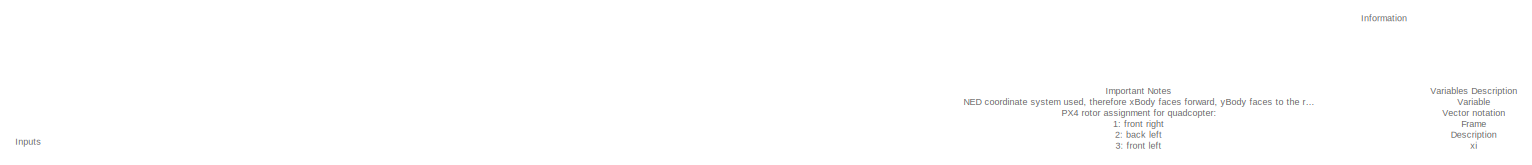
[diagram: root canvas - part 1/7, top center region]
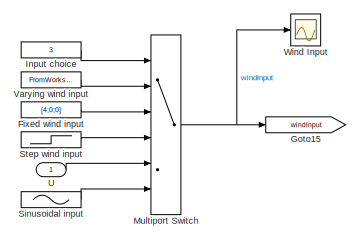
[diagram: root canvas - part 2/7, top left region]
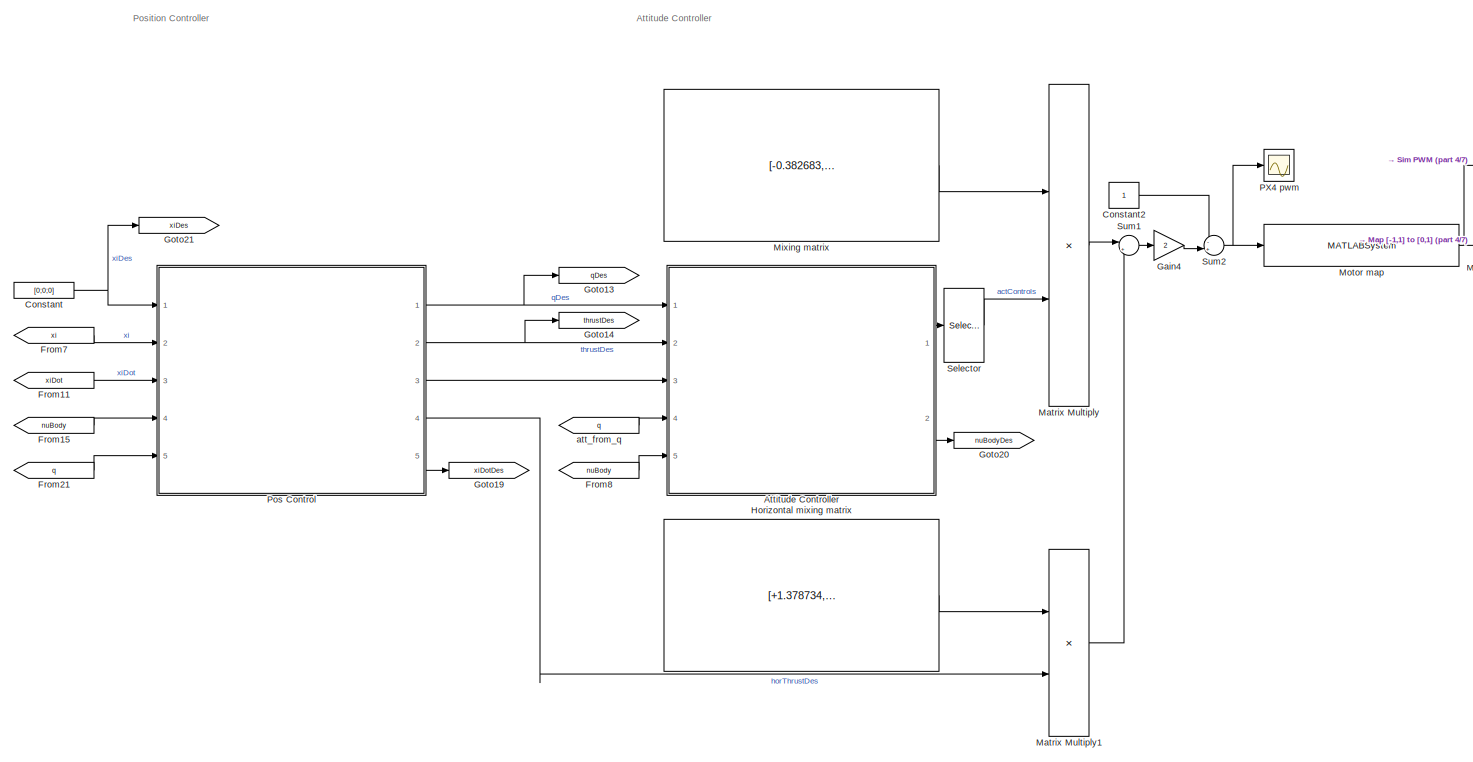
[diagram: root canvas - part 3/7, middle left region]
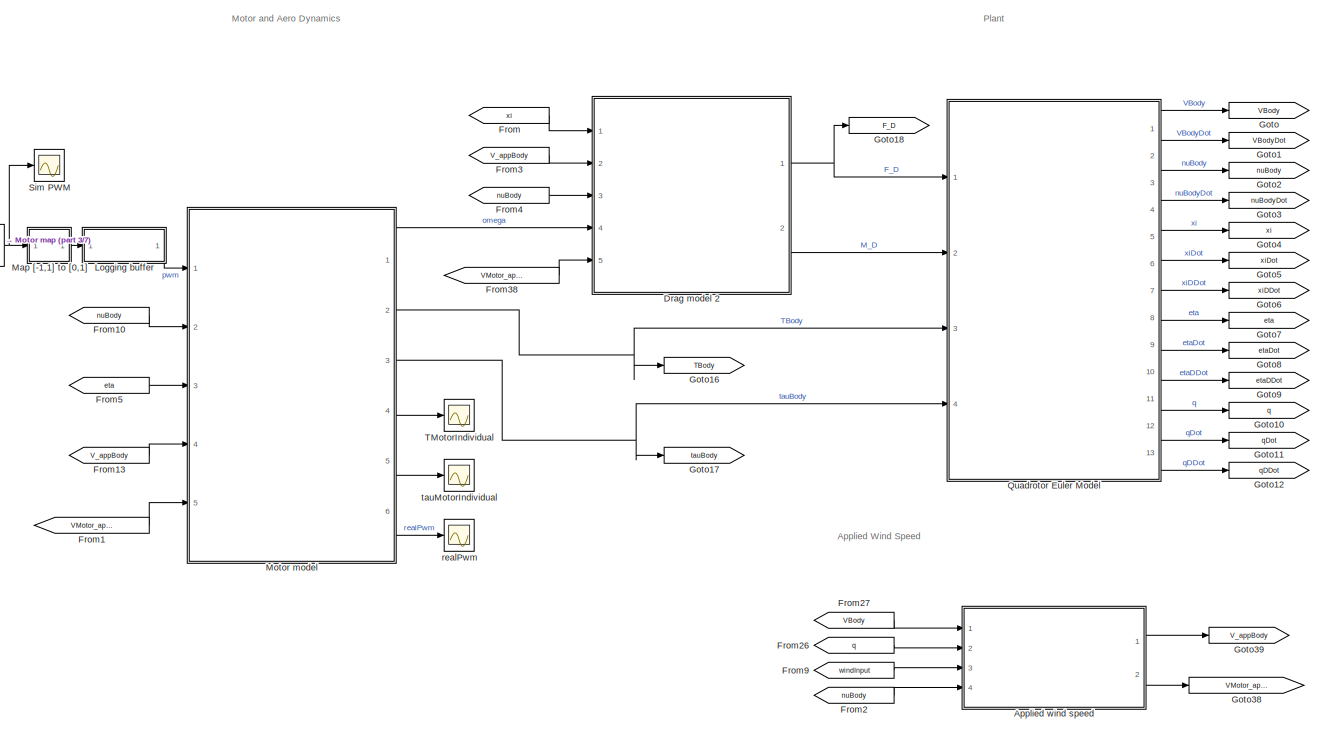
[diagram: root canvas - part 4/7, central region]
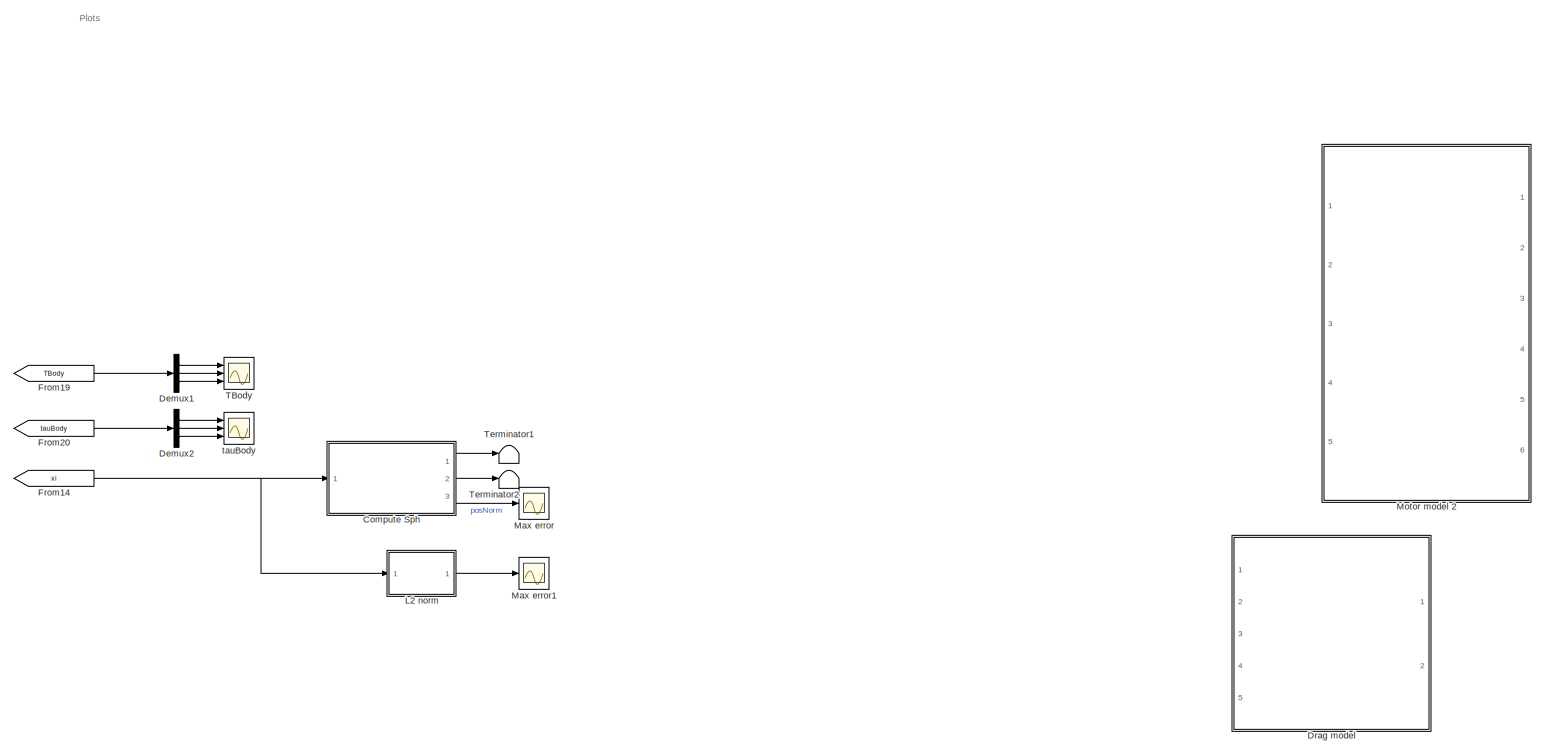
[diagram: root canvas - part 5/7, bottom right region]
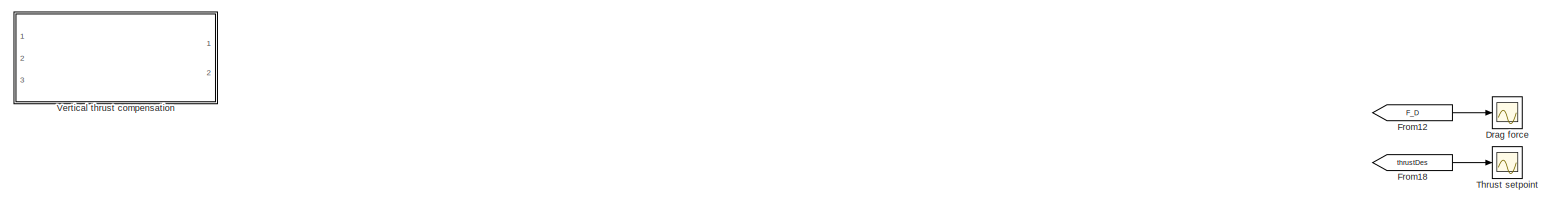
[diagram: root canvas - part 6/7, middle left region]
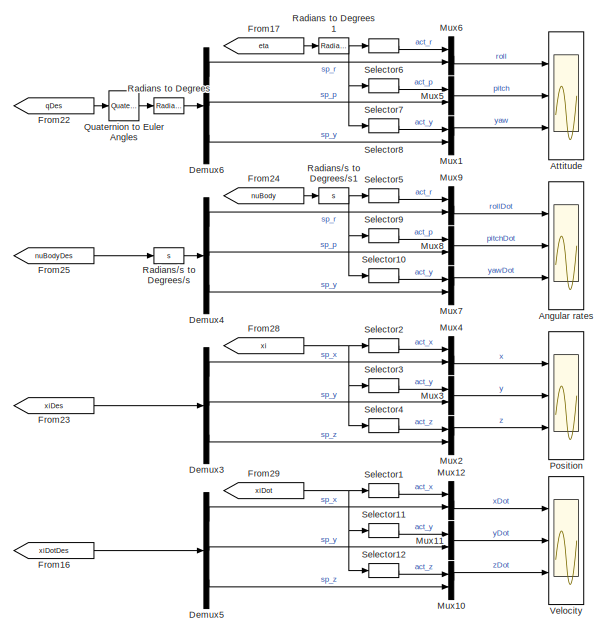
[diagram: root canvas - part 7/7, bottom center region]
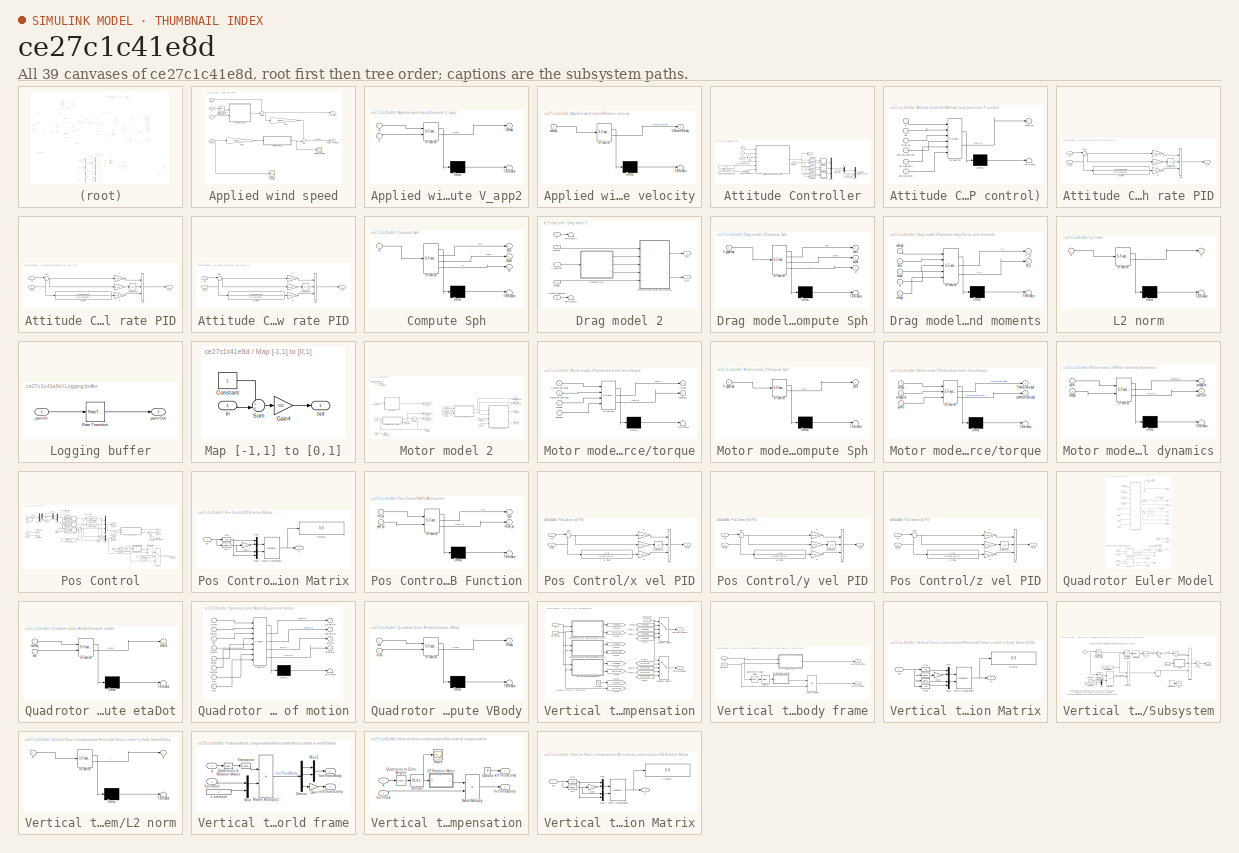
[diagram: thumbnail index - all 39 canvases of the model, root first then tree order]
MODEL slx_ce27c1c41e8d
KIND model
CONFIG AbsTol = auto
CONFIG EnableMultiTasking = on
CONFIG FixedStep = auto
CONFIG MaxStep = Simulation.TS_MAX
CONFIG MinStep = auto
CONFIG PreLoadFcn = % InitializeParameters;
CONFIG RelTol = 1e-3
CONFIG SampleTimeConstraint = Unconstrained
CONFIG SolverName = VariableStepAuto
CONFIG StartTime = 0.0
CONFIG StopTime = Simulation.T_END
BLOCK [Scope] Angular rates
  Floating = off
  NumInputPorts = 3
  Ports = [3]
  ScopeSpecificationString = Simulink.scopes.TimeScopeBlockCfg('CurrentConfiguration', extmgr.ConfigurationSet(extmgr.Configuration('Core','General UI',true),extmgr.Configuration('Core','Source UI',true),extmgr.Configuration('Sources','WiredSimulink',true,'DataLoggingVariableName','ScopeData2'),extmgr.Configuration('Visuals','Time Domain',true,'SerializedDisplays',{struct('MinYLimReal','-0.000000000018','MaxYLimReal','0.00000...<+2882ch>
BLOCK [SubSystem] Applied wind speed
  Ports = [4, 2]
  RequestExecContextInheritance = off
BLOCK [SubSystem] Applied wind speed/Compute V_app2
  ErrorFcn = Stateflow.Translate.translate
  PermitHierarchicalResolution = ExplicitOnly
  Ports = [2, 1]
  RequestExecContextInheritance = off
  SFBlockType = MATLAB Function
  TreatAsAtomicUnit = on
BLOCK [Demux] Applied wind speed/Compute V_app2/ Demux 
  Outputs = 1
  Ports = [1, 1]
BLOCK [S-Function] Applied wind speed/Compute V_app2/ SFunction 
  EnableBusSupport = on
  FunctionName = sf_sfun
  PortCounts = [2 2]
  Ports = [2, 2]
  SFcnIsStateOwnerBlock = off
  SFunctionDeploymentMode = off
  Tag = Stateflow S-Function 5
BLOCK [Terminator] Applied wind speed/Compute V_app2/ Terminator 
BLOCK [Inport] Applied wind speed/Compute V_app2/Q
BLOCK [Inport] Applied wind speed/Compute V_app2/U
  Port = 2
BLOCK [Outport] Applied wind speed/Compute V_app2/UBody
  VectorParamsAs1DForOutWhenUnconnected = off
BLOCK [Gain] Applied wind speed/Gain
  Gain = ones(1,Uav.N_ROTORS)
  Multiplication = Matrix(u*K)
BLOCK [Gain] Applied wind speed/Gain1
  Gain = ones(1,Uav.N_ROTORS)
  Multiplication = Matrix(u*K)
BLOCK [Reference] Applied wind speed/Quaternion to Rotation Matrix1  REF=QuaternionLibrary/Quaternion
to Rotation Matrix
  Ports = [1, 1]
  SourceBlock = QuaternionLibrary/Quaternion\nto Rotation Matrix
BLOCK [Scope] Applied wind speed/Relative velocities
  Floating = off
  NumInputPorts = 1
  Ports = [1]
  ScopeSpecificationString = Simulink.scopes.TimeScopeBlockCfg('CurrentConfiguration', extmgr.ConfigurationSet(extmgr.Configuration('Core','General UI',true),extmgr.Configuration('Core','Source UI',true),extmgr.Configuration('Sources','WiredSimulink',true,'DataLoggingVariableName','ScopeData7'),extmgr.Configuration('Visuals','Time Domain',true,'SerializedDisplays',{struct('MinYLimReal','-0.10082','MaxYLimReal','0.10082','YLab...<+1971ch>
BLOCK [SubSystem] Applied wind speed/Relative velocity
  ErrorFcn = Stateflow.Translate.translate
  PermitHierarchicalResolution = ExplicitOnly
  Ports = [1, 1]
  RequestExecContextInheritance = off
  SFBlockType = MATLAB Function
  TreatAsAtomicUnit = on
BLOCK [Demux] Applied wind speed/Relative velocity/ Demux 
  Outputs = 1
  Ports = [1, 1]
BLOCK [S-Function] Applied wind speed/Relative velocity/ SFunction 
  EnableBusSupport = on
  FunctionName = sf_sfun
  Parameters = Uav
  PortCounts = [1 2]
  Ports = [1, 2]
  SFcnIsStateOwnerBlock = off
  SFunctionDeploymentMode = off
  Tag = Stateflow S-Function 4
BLOCK [Terminator] Applied wind speed/Relative velocity/ Terminator 
BLOCK [Outport] Applied wind speed/Relative velocity/VMotorRelBody
  VectorParamsAs1DForOutWhenUnconnected = off
BLOCK [Inport] Applied wind speed/Relative velocity/nuBody
BLOCK [Scope] Applied wind speed/Rotational velocities
  Floating = off
  NumInputPorts = 1
  Ports = [1]
  ScopeSpecificationString = Simulink.scopes.TimeScopeBlockCfg('CurrentConfiguration', extmgr.ConfigurationSet(extmgr.Configuration('Core','General UI',true),extmgr.Configuration('Core','Source UI',true),extmgr.Configuration('Sources','WiredSimulink',true,'DataLoggingVariableName','ScopeData8'),extmgr.Configuration('Visuals','Time Domain',true,'SerializedDisplays',{struct('MinYLimReal','-0.22625','MaxYLimReal','0.41313','YLab...<+1461ch>
BLOCK [Sum] Applied wind speed/Sum
  Inputs = ++|
  Ports = [2, 1]
BLOCK [Sum] Applied wind speed/Sum1
  Inputs = ++|
  Ports = [2, 1]
BLOCK [Inport] Applied wind speed/U
  Port = 3
  Unit = m/s
BLOCK [Inport] Applied wind speed/VBody
  Unit = m/s
BLOCK [Outport] Applied wind speed/VMotor_appBody
  Port = 2
  PortDimensions = [3,Uav.N_ROTORS]
  Unit = m/s
  VectorParamsAs1DForOutWhenUnconnected = off
BLOCK [Outport] Applied wind speed/V_appBody
  Unit = m/s
  VectorParamsAs1DForOutWhenUnconnected = off
BLOCK [Inport] Applied wind speed/nuBody
  Port = 4
  Unit = rad/s
BLOCK [Inport] Applied wind speed/q
  Port = 2
BLOCK [Scope] Attitude
  Floating = off
  NumInputPorts = 3
  Ports = [3]
  ScopeSpecificationString = Simulink.scopes.TimeScopeBlockCfg('CurrentConfiguration', extmgr.ConfigurationSet(extmgr.Configuration('Core','General UI',true),extmgr.Configuration('Core','Source UI',true),extmgr.Configuration('Sources','WiredSimulink',true,'DataLoggingVariableName','ScopeData3'),extmgr.Configuration('Visuals','Time Domain',true,'SerializedDisplays',{struct('MinYLimReal','-0.00000003','MaxYLimReal','0.00000016'...<+2845ch>
BLOCK [SubSystem] Attitude Controller
  Ports = [5, 2]
  RequestExecContextInheritance = off
BLOCK [Constant] Attitude Controller/Attitude P gains
  Value = [ 6.5; 6.5; 2.8]
BLOCK [SubSystem] Attitude Controller/Attitude loop (nonlinear P control)
  ErrorFcn = Stateflow.Translate.translate
  PermitHierarchicalResolution = ExplicitOnly
  Ports = [6, 1]
  RequestExecContextInheritance = off
  SFBlockType = MATLAB Function
  TreatAsAtomicUnit = on
BLOCK [Demux] Attitude Controller/Attitude loop (nonlinear P control)/ Demux 
  Outputs = 1
  Ports = [1, 1]
BLOCK [S-Function] Attitude Controller/Attitude loop (nonlinear P control)/ SFunction 
  EnableBusSupport = on
  FunctionName = sf_sfun
  PortCounts = [6 2]
  Ports = [6, 2]
  SFcnIsStateOwnerBlock = off
  SFunctionDeploymentMode = off
  Tag = Stateflow S-Function 6
BLOCK [Terminator] Attitude Controller/Attitude loop (nonlinear P control)/ Terminator 
BLOCK [Inport] Attitude Controller/Attitude loop (nonlinear P control)/attitude_gain
  Port = 5
BLOCK [Inport] Attitude Controller/Attitude loop (nonlinear P control)/auto_rate_max
  Port = 6
BLOCK [Inport] Attitude Controller/Attitude loop (nonlinear P control)/q
BLOCK [Inport] Attitude Controller/Attitude loop (nonlinear P control)/qd
  Port = 2
BLOCK [Outport] Attitude Controller/Attitude loop (nonlinear P control)/rates_sp
  VectorParamsAs1DForOutWhenUnconnected = off
BLOCK [Inport] Attitude Controller/Attitude loop (nonlinear P control)/thrust_sp
  Port = 3
BLOCK [Inport] Attitude Controller/Attitude loop (nonlinear P control)/yaw_sp_move_rate
  Port = 4
BLOCK [Constant] Attitude Controller/Auto mode max rates (deg//s)
  Value = [220;220;200]
BLOCK [Constant] Attitude Controller/Constant5
  Value = [0;0;0;0]
BLOCK [Reference] Attitude Controller/Degrees to Radians  REF=simulink_extras/Transformations/Degrees to
Radians
  Ports = [1, 1]
  SourceBlock = simulink_extras/Transformations/Degrees to\nRadians
  SourceProductBaseCode = SL
  SourceType = DegreesToRadians
BLOCK [Gain] Attitude Controller/Gain
  Gain = -1
BLOCK [Mux] Attitude Controller/Mux
  DisplayOption = bar
  Inputs = 2
  Ports = [2, 1]
BLOCK [Mux] Attitude Controller/Mux1
  DisplayOption = bar
  Inputs = 2
  Ports = [2, 1]
BLOCK [Mux] Attitude Controller/Mux2
  DisplayOption = bar
  Inputs = 3
  Ports = [3, 1]
BLOCK [SubSystem] Attitude Controller/Pitch rate PID
  Ports = [2, 1]
  RequestExecContextInheritance = off
BLOCK [Sum] Attitude Controller/Pitch rate PID/Add
  IconShape = rectangular
  Inputs = ++-
  Ports = [3, 1]
BLOCK [Gain] Attitude Controller/Pitch rate PID/D
  Gain = PID_D
BLOCK [TransferFcn] Attitude Controller/Pitch rate PID/D filter
  ContinuousStateAttributes = PID_D_STATENAME
  Denominator = [1 2*(PID_FC*2*pi)*0.68  (PID_FC*2*pi)^2]
  Numerator = [(PID_FC*2*pi)^2 0]
BLOCK [Gain] Attitude Controller/Pitch rate PID/I
  Gain = PID_I
BLOCK [Integrator] Attitude Controller/Pitch rate PID/Integrator1
  ContinuousStateAttributes = PID_I_STATENAME
  LimitOutput = on
  LowerSaturationLimit = -0.3
  Ports = [1, 1]
  UpperSaturationLimit = 0.3
BLOCK [Outport] Attitude Controller/Pitch rate PID/Out
  VectorParamsAs1DForOutWhenUnconnected = off
BLOCK [Gain] Attitude Controller/Pitch rate PID/P
  Gain = PID_P
BLOCK [Sum] Attitude Controller/Pitch rate PID/Sum
  Inputs = |+-
  Ports = [2, 1]
BLOCK [Inport] Attitude Controller/Pitch rate PID/meas
  Port = 2
BLOCK [Inport] Attitude Controller/Pitch rate PID/ref
BLOCK [SubSystem] Attitude Controller/Roll rate PID
  Ports = [2, 1]
  RequestExecContextInheritance = off
BLOCK [Sum] Attitude Controller/Roll rate PID/Add
  IconShape = rectangular
  Inputs = ++-
  Ports = [3, 1]
BLOCK [Gain] Attitude Controller/Roll rate PID/D
  Gain = PID_D
BLOCK [TransferFcn] Attitude Controller/Roll rate PID/D filter
  ContinuousStateAttributes = PID_D_STATENAME
  Denominator = [1 2*(PID_FC*2*pi)*0.68  (PID_FC*2*pi)^2]
  Numerator = [(PID_FC*2*pi)^2 0]
BLOCK [Gain] Attitude Controller/Roll rate PID/I
  Gain = PID_I
BLOCK [Integrator] Attitude Controller/Roll rate PID/Integrator1
  ContinuousStateAttributes = PID_I_STATENAME
  LimitOutput = on
  LowerSaturationLimit = -0.3
  Ports = [1, 1]
  UpperSaturationLimit = 0.3
BLOCK [Outport] Attitude Controller/Roll rate PID/Out
  VectorParamsAs1DForOutWhenUnconnected = off
BLOCK [Gain] Attitude Controller/Roll rate PID/P
  Gain = PID_P
BLOCK [Sum] Attitude Controller/Roll rate PID/Sum
  Inputs = |+-
  Ports = [2, 1]
BLOCK [Inport] Attitude Controller/Roll rate PID/meas
  Port = 2
BLOCK [Inport] Attitude Controller/Roll rate PID/ref
BLOCK [Selector] Attitude Controller/Selector10
  IndexOptions = Index vector (dialog)
  Indices = 3
  InputPortWidth = 3
  OutputSizes = 1
  Ports = [1, 1]
BLOCK [Selector] Attitude Controller/Selector11
  IndexOptions = Index vector (dialog)
  Indices = 3
  InputPortWidth = 3
  OutputSizes = 1
  Ports = [1, 1]
BLOCK [Selector] Attitude Controller/Selector6
  IndexOptions = Index vector (dialog)
  Indices = 1
  InputPortWidth = 3
  OutputSizes = 1
  Ports = [1, 1]
BLOCK [Selector] Attitude Controller/Selector7
  IndexOptions = Index vector (dialog)
  Indices = 1
  InputPortWidth = 3
  OutputSizes = 1
  Ports = [1, 1]
BLOCK [Selector] Attitude Controller/Selector8
  IndexOptions = Index vector (dialog)
  Indices = 2
  InputPortWidth = 3
  OutputSizes = 1
  Ports = [1, 1]
BLOCK [Selector] Attitude Controller/Selector9
  IndexOptions = Index vector (dialog)
  Indices = 2
  InputPortWidth = 3
  OutputSizes = 1
  Ports = [1, 1]
BLOCK [SubSystem] Attitude Controller/Yaw rate PID
  Ports = [2, 1]
  RequestExecContextInheritance = off
BLOCK [Sum] Attitude Controller/Yaw rate PID/Add
  IconShape = rectangular
  Inputs = ++-
  Ports = [3, 1]
BLOCK [Gain] Attitude Controller/Yaw rate PID/D
  Gain = PID_D
BLOCK [TransferFcn] Attitude Controller/Yaw rate PID/D filter
  ContinuousStateAttributes = PID_D_STATENAME
  Denominator = [1 2*(PID_FC*2*pi)*0.68  (PID_FC*2*pi)^2]
  Numerator = [(PID_FC*2*pi)^2 0]
BLOCK [Gain] Attitude Controller/Yaw rate PID/I
  Gain = PID_I
BLOCK [Integrator] Attitude Controller/Yaw rate PID/Integrator1
  ContinuousStateAttributes = PID_I_STATENAME
  LimitOutput = on
  LowerSaturationLimit = -0.3
  Ports = [1, 1]
  UpperSaturationLimit = 0.3
BLOCK [Outport] Attitude Controller/Yaw rate PID/Out
  VectorParamsAs1DForOutWhenUnconnected = off
BLOCK [Gain] Attitude Controller/Yaw rate PID/P
  Gain = PID_P
BLOCK [Sum] Attitude Controller/Yaw rate PID/Sum
  Inputs = |+-
  Ports = [2, 1]
BLOCK [Inport] Attitude Controller/Yaw rate PID/meas
  Port = 2
BLOCK [Inport] Attitude Controller/Yaw rate PID/ref
BLOCK [Outport] Attitude Controller/actuators_control
  PortDimensions = 8
  VectorParamsAs1DForOutWhenUnconnected = off
BLOCK [Inport] Attitude Controller/nuBody
  Port = 5
BLOCK [Inport] Attitude Controller/q
  Port = 4
BLOCK [Inport] Attitude Controller/qd
BLOCK [Outport] Attitude Controller/rates_sp
  Port = 2
  VectorParamsAs1DForOutWhenUnconnected = off
BLOCK [Inport] Attitude Controller/thrust_sp
  Port = 2
  PortDimensions = 1
BLOCK [InportShadow] Attitude Controller/thrust_sp1
  Port = 2
  PortDimensions = 1
BLOCK [Inport] Attitude Controller/yaw_sp_move_rate
  Port = 3
BLOCK [SubSystem] Compute Sph
  ErrorFcn = Stateflow.Translate.translate
  PermitHierarchicalResolution = ExplicitOnly
  Ports = [1, 3]
  RequestExecContextInheritance = off
  SFBlockType = MATLAB Function
  TreatAsAtomicUnit = on
BLOCK [Demux] Compute Sph/ Demux 
  Outputs = 1
  Ports = [1, 1]
BLOCK [S-Function] Compute Sph/ SFunction 
  EnableBusSupport = on
  FunctionName = sf_sfun
  PortCounts = [1 4]
  Ports = [1, 4]
  SFcnIsStateOwnerBlock = off
  SFunctionDeploymentMode = off
  Tag = Stateflow S-Function 8
BLOCK [Terminator] Compute Sph/ Terminator 
BLOCK [Outport] Compute Sph/R
  Port = 3
  VectorParamsAs1DForOutWhenUnconnected = off
BLOCK [Outport] Compute Sph/alpha
  Port = 2
  VectorParamsAs1DForOutWhenUnconnected = off
BLOCK [Outport] Compute Sph/beta
  VectorParamsAs1DForOutWhenUnconnected = off
BLOCK [Inport] Compute Sph/in
BLOCK [Constant] Constant
  Value = [0;0;0]
BLOCK [Constant] Constant2
BLOCK [Demux] Demux1
  Outputs = 3
  Ports = [1, 3]
BLOCK [Demux] Demux2
  Outputs = 3
  Ports = [1, 3]
BLOCK [Demux] Demux3
  Outputs = 3
  Ports = [1, 3]
BLOCK [Demux] Demux4
  Outputs = 3
  Ports = [1, 3]
BLOCK [Demux] Demux5
  Outputs = 3
  Ports = [1, 3]
BLOCK [Demux] Demux6
  Outputs = 3
  Ports = [1, 3]
BLOCK [Scope] Drag force
  Floating = off
  NumInputPorts = 1
  Ports = [1]
  ScopeSpecificationString = Simulink.scopes.TimeScopeBlockCfg('CurrentConfiguration', extmgr.ConfigurationSet(extmgr.Configuration('Core','General UI',true),extmgr.Configuration('Core','Source UI',true),extmgr.Configuration('Sources','WiredSimulink',true,'DataLoggingVariableName','ScopeData4'),extmgr.Configuration('Visuals','Time Domain',true,'SerializedDisplays',{struct('MinYLimReal','-0.87753','MaxYLimReal','0.20159','YLab...<+1430ch>
BLOCK [ModelReference] Drag model
  Commented = on
  ModelNameDialog = DragModelAIAAv3
  ModelReferenceVersion = 5.2
  Ports = [5, 2]
BLOCK [SubSystem] Drag model 2
  Ports = [5, 2]
  RequestExecContextInheritance = off
BLOCK [SubSystem] Drag model 2/Compute Sph
  ErrorFcn = Stateflow.Translate.translate
  PermitHierarchicalResolution = ExplicitOnly
  Ports = [1, 3]
  RequestExecContextInheritance = off
  SFBlockType = MATLAB Function
  TreatAsAtomicUnit = on
BLOCK [Demux] Drag model 2/Compute Sph/ Demux 
  Outputs = 1
  Ports = [1, 1]
BLOCK [S-Function] Drag model 2/Compute Sph/ SFunction 
  EnableBusSupport = on
  FunctionName = sf_sfun
  PortCounts = [1 4]
  Ports = [1, 4]
  SFcnIsStateOwnerBlock = off
  SFunctionDeploymentMode = off
  Tag = Stateflow S-Function 20
BLOCK [Terminator] Drag model 2/Compute Sph/ Terminator 
BLOCK [Outport] Drag model 2/Compute Sph/U
  Port = 3
  VectorParamsAs1DForOutWhenUnconnected = off
BLOCK [Inport] Drag model 2/Compute Sph/V_appBody
BLOCK [Outport] Drag model 2/Compute Sph/alpha
  Port = 2
  VectorParamsAs1DForOutWhenUnconnected = off
BLOCK [Outport] Drag model 2/Compute Sph/beta
  VectorParamsAs1DForOutWhenUnconnected = off
BLOCK [SubSystem] Drag model 2/Compute drag forces and moments
  ErrorFcn = Stateflow.Translate.translate
  PermitHierarchicalResolution = ExplicitOnly
  Ports = [5, 2]
  RequestExecContextInheritance = off
  SFBlockType = MATLAB Function
  TreatAsAtomicUnit = on
BLOCK [Demux] Drag model 2/Compute drag forces and moments/ Demux 
  Outputs = 1
  Ports = [1, 1]
BLOCK [S-Function] Drag model 2/Compute drag forces and moments/ SFunction 
  EnableBusSupport = on
  FunctionName = sf_sfun
  Parameters = Aero,Uav
  PortCounts = [5 3]
  Ports = [5, 3]
  SFcnIsStateOwnerBlock = off
  SFunctionDeploymentMode = off
  Tag = Stateflow S-Function 21
BLOCK [Terminator] Drag model 2/Compute drag forces and moments/ Terminator 
BLOCK [Outport] Drag model 2/Compute drag forces and moments/F_D
  VectorParamsAs1DForOutWhenUnconnected = off
BLOCK [Outport] Drag model 2/Compute drag forces and moments/M_D
  Port = 2
  VectorParamsAs1DForOutWhenUnconnected = off
BLOCK [Inport] Drag model 2/Compute drag forces and moments/U
  Port = 4
BLOCK [Inport] Drag model 2/Compute drag forces and moments/alpha
  Port = 3
BLOCK [Inport] Drag model 2/Compute drag forces and moments/beta
  Port = 2
BLOCK [Inport] Drag model 2/Compute drag forces and moments/nuBody
BLOCK [Inport] Drag model 2/Compute drag forces and moments/omega
  Port = 5
BLOCK [Outport] Drag model 2/F_D
  Unit = N
  VectorParamsAs1DForOutWhenUnconnected = off
BLOCK [Outport] Drag model 2/M_D
  Port = 2
  Unit = N*m
  VectorParamsAs1DForOutWhenUnconnected = off
BLOCK [Terminator] Drag model 2/Terminator1
BLOCK [Terminator] Drag model 2/Terminator2
BLOCK [Inport] Drag model 2/VMotor_appBody
  Port = 5
  PortDimensions = [3,Uav.N_ROTORS]
  Unit = m/s
BLOCK [Inport] Drag model 2/V_appBody
  Port = 2
  PortDimensions = 3
  Unit = m/s
BLOCK [Inport] Drag model 2/nuBody
  Port = 3
  PortDimensions = 3
  Unit = rad/s
BLOCK [Inport] Drag model 2/omega
  Port = 4
  PortDimensions = Uav.N_ROTORS
  Unit = rad/s
BLOCK [Inport] Drag model 2/xi
  PortDimensions = 3
  Unit = m
BLOCK [Constant] Fixed wind input
  Value = [4;0;0]
BLOCK [From] From
  GotoTag = xi
BLOCK [From] From1
  GotoTag = VMotor_appBody
BLOCK [From] From10
  GotoTag = nuBody
BLOCK [From] From11
  GotoTag = xiDot
BLOCK [From] From12
  GotoTag = F_D
BLOCK [From] From13
  GotoTag = V_appBody
BLOCK [From] From14
  GotoTag = xi
BLOCK [From] From15
  GotoTag = nuBody
BLOCK [From] From16
  GotoTag = xiDotDes
BLOCK [From] From17
  GotoTag = eta
BLOCK [From] From18
  GotoTag = thrustDes
BLOCK [From] From19
  GotoTag = TBody
BLOCK [From] From2
  GotoTag = nuBody
BLOCK [From] From20
  GotoTag = tauBody
BLOCK [From] From21
  GotoTag = q
BLOCK [From] From22
  GotoTag = qDes
BLOCK [From] From23
  GotoTag = xiDes
BLOCK [From] From24
  GotoTag = nuBody
BLOCK [From] From25
  GotoTag = nuBodyDes
BLOCK [From] From26
  GotoTag = q
BLOCK [From] From27
  GotoTag = VBody
BLOCK [From] From28
  GotoTag = xi
BLOCK [From] From29
  GotoTag = xiDot
BLOCK [From] From3
  GotoTag = V_appBody
BLOCK [From] From38
  GotoTag = VMotor_appBody
BLOCK [From] From4
  GotoTag = nuBody
BLOCK [From] From5
  GotoTag = eta
BLOCK [From] From7
  GotoTag = xi
BLOCK [From] From8
  GotoTag = nuBody
BLOCK [From] From9
  GotoTag = windInput
BLOCK [Gain] Gain4
  Gain = 2
BLOCK [Goto] Goto
  GotoTag = VBody
BLOCK [Goto] Goto1
  GotoTag = VBodyDot
BLOCK [Goto] Goto10
  GotoTag = q
BLOCK [Goto] Goto11
  GotoTag = qDot
BLOCK [Goto] Goto12
  GotoTag = qDDot
BLOCK [Goto] Goto13
  GotoTag = qDes
BLOCK [Goto] Goto14
  GotoTag = thrustDes
BLOCK [Goto] Goto15
  GotoTag = windInput
BLOCK [Goto] Goto16
  GotoTag = TBody
BLOCK [Goto] Goto17
  GotoTag = tauBody
BLOCK [Goto] Goto18
  GotoTag = F_D
BLOCK [Goto] Goto19
  GotoTag = xiDotDes
BLOCK [Goto] Goto2
  GotoTag = nuBody
BLOCK [Goto] Goto20
  GotoTag = nuBodyDes
BLOCK [Goto] Goto21
  GotoTag = xiDes
BLOCK [Goto] Goto3
  GotoTag = nuBodyDot
BLOCK [Goto] Goto38
  GotoTag = VMotor_appBody
BLOCK [Goto] Goto39
  GotoTag = V_appBody
BLOCK [Goto] Goto4
  GotoTag = xi
BLOCK [Goto] Goto5
  GotoTag = xiDot
BLOCK [Goto] Goto6
  GotoTag = xiDDot
BLOCK [Goto] Goto7
  GotoTag = eta
BLOCK [Goto] Goto8
  GotoTag = etaDot
BLOCK [Goto] Goto9
  GotoTag = etaDDot
BLOCK [Constant] Horizontal mixing matrix
  Value = [+1.378734, -3.328559;\n -1.378734, +3.328559;\n -3.328559, +1.378734;\n -1.378734, -3.328559;\n +1.378734, +3.328559;\n +3.328559, -1.378734;\n -3.328559, -1.378734;\n +3.328559, +1.378734]
BLOCK [Constant] Input choice
  Value = 3
BLOCK [SubSystem] L2 norm
  ErrorFcn = Stateflow.Translate.translate
  PermitHierarchicalResolution = ExplicitOnly
  Ports = [1, 1]
  RequestExecContextInheritance = off
  SFBlockType = MATLAB Function
  TreatAsAtomicUnit = on
BLOCK [Demux] L2 norm/ Demux 
  Outputs = 1
  Ports = [1, 1]
BLOCK [S-Function] L2 norm/ SFunction 
  EnableBusSupport = on
  FunctionName = sf_sfun
  PortCounts = [1 2]
  Ports = [1, 2]
  SFcnIsStateOwnerBlock = off
  SFunctionDeploymentMode = off
  Tag = Stateflow S-Function 15
BLOCK [Terminator] L2 norm/ Terminator 
BLOCK [Inport] L2 norm/u
BLOCK [Outport] L2 norm/y
  VectorParamsAs1DForOutWhenUnconnected = off
BLOCK [SubSystem] Logging buffer
  Ports = [1, 1]
  RequestExecContextInheritance = off
BLOCK [RateTransition] Logging buffer/Rate Transition
  Commented = through
  SCDEnableBlockLinearizationSpecification = on
BLOCK [Inport] Logging buffer/pwmIn
BLOCK [Outport] Logging buffer/pwmOut
  VectorParamsAs1DForOutWhenUnconnected = off
BLOCK [SubSystem] Map [-1,1] to [0,1]
  Ports = [1, 1]
  RequestExecContextInheritance = off
BLOCK [Constant] Map [-1,1] to [0,1]/Constant
BLOCK [Gain] Map [-1,1] to [0,1]/Gain4
  Gain = 0.5
BLOCK [Sum] Map [-1,1] to [0,1]/Sum
  Inputs = ++|
  Ports = [2, 1]
BLOCK [Inport] Map [-1,1] to [0,1]/in
BLOCK [Outport] Map [-1,1] to [0,1]/out
  VectorParamsAs1DForOutWhenUnconnected = off
BLOCK [Product] Matrix Multiply
  Multiplication = Matrix(*)
  Ports = [2, 1]
BLOCK [Product] Matrix Multiply1
  Multiplication = Matrix(*)
  Ports = [2, 1]
BLOCK [Scope] Max error
  Floating = off
  NumInputPorts = 1
  Ports = [1]
  ScopeSpecificationString = Simulink.scopes.TimeScopeBlockCfg('CurrentConfiguration', extmgr.ConfigurationSet(extmgr.Configuration('Core','General UI',true),extmgr.Configuration('Core','Source UI',true),extmgr.Configuration('Sources','WiredSimulink',true,'DataLoggingVariableName','ScopeData5'),extmgr.Configuration('Visuals','Time Domain',true,'SerializedDisplays',{struct('MinYLimReal','-0.000001','MaxYLimReal','0.000011','YL...<+1447ch>
BLOCK [Scope] Max error1
  Floating = off
  NumInputPorts = 1
  Ports = [1]
  ScopeSpecificationString = Simulink.scopes.TimeScopeBlockCfg('CurrentConfiguration', extmgr.ConfigurationSet(extmgr.Configuration('Core','General UI',true),extmgr.Configuration('Core','Source UI',true),extmgr.Configuration('Sources','WiredSimulink',true,'DataLoggingVariableName','ScopeData6'),extmgr.Configuration('Visuals','Time Domain',true,'SerializedDisplays',{struct('MinYLimReal','-0.03873','MaxYLimReal','0.34858','YLab...<+1449ch>
BLOCK [Constant] Mixing matrix
  Value = [-0.382683,  0.923880, -1.000000,  1.000000 ;\n  0.382683, -0.923880, -1.000000,  1.000000 ;\n -0.923880,  0.382683,  1.000000,  1.000000 ;\n -0.382683, -0.923880,  1.000000,  1.000000 ;\n  0.382683,  0.923880,  1.000000,  1.000000 ;\n  0.923880, -0.382683,  1.000000,  1.000000 ;\n  0.923880,  0.382683, -1.000000,  1.000000 ;\n -0.923880, -0.382683, -1.000000,  1.000000 ]
BLOCK [MATLABSystem] Motor map
  MaskDisplay = disp(['MOTOR' char(10) 'MAP' char(10) 'octa_x']);\nport_label('input',1,'px4PWM');\nport_label('output',1,'simPWM');
  MaskType = MotorMap
  Ports = [1, 1]
  SimulateUsing = Code generation
  System = MotorMap
  airframeConfig = 5
BLOCK [ModelReference] Motor model
  ModelNameDialog = MotorModelZJChen
  ModelReferenceVersion = 5.6
  Ports = [5, 6]
BLOCK [SubSystem] Motor model 2
  Commented = on
  Ports = [5, 6]
  RequestExecContextInheritance = off
BLOCK [SubSystem] Motor model 2/Combined motor force//torque
  ErrorFcn = Stateflow.Translate.translate
  PermitHierarchicalResolution = ExplicitOnly
  Ports = [4, 2]
  RequestExecContextInheritance = off
  SFBlockType = MATLAB Function
  TreatAsAtomicUnit = on
BLOCK [Demux] Motor model 2/Combined motor force//torque/ Demux 
  Outputs = 1
  Ports = [1, 1]
BLOCK [S-Function] Motor model 2/Combined motor force//torque/ SFunction 
  EnableBusSupport = on
  FunctionName = sf_sfun
  Parameters = Motor,Uav
  PortCounts = [4 3]
  Ports = [4, 3]
  SFcnIsStateOwnerBlock = off
  SFunctionDeploymentMode = off
  Tag = Stateflow S-Function 18
BLOCK [Terminator] Motor model 2/Combined motor force//torque/ Terminator 
BLOCK [Outport] Motor model 2/Combined motor force//torque/TBody
  VectorParamsAs1DForOutWhenUnconnected = off
BLOCK [Inport] Motor model 2/Combined motor force//torque/TMotorIndividual
BLOCK [Inport] Motor model 2/Combined motor force//torque/nuBody
  Port = 4
BLOCK [Inport] Motor model 2/Combined motor force//torque/omega
  Port = 3
BLOCK [Outport] Motor model 2/Combined motor force//torque/tauBody
  Port = 2
  VectorParamsAs1DForOutWhenUnconnected = off
BLOCK [Inport] Motor model 2/Combined motor force//torque/tauMotorIndividual
  Port = 2
BLOCK [SubSystem] Motor model 2/Compute Sph
  ErrorFcn = Stateflow.Translate.translate
  PermitHierarchicalResolution = ExplicitOnly
  Ports = [1, 1]
  RequestExecContextInheritance = off
  SFBlockType = MATLAB Function
  TreatAsAtomicUnit = on
BLOCK [Demux] Motor model 2/Compute Sph/ Demux 
  Outputs = 1
  Ports = [1, 1]
BLOCK [S-Function] Motor model 2/Compute Sph/ SFunction 
  EnableBusSupport = on
  FunctionName = sf_sfun
  PortCounts = [1 2]
  Ports = [1, 2]
  SFcnIsStateOwnerBlock = off
  SFunctionDeploymentMode = off
  Tag = Stateflow S-Function 16
BLOCK [Terminator] Motor model 2/Compute Sph/ Terminator 
BLOCK [Inport] Motor model 2/Compute Sph/V_appBody
BLOCK [Outport] Motor model 2/Compute Sph/polar
  VectorParamsAs1DForOutWhenUnconnected = off
BLOCK [From] Motor model 2/From1
  GotoTag = omegaDot
BLOCK [From] Motor model 2/From3
  GotoTag = omega
BLOCK [From] Motor model 2/From5
  GotoTag = omega
BLOCK [From] Motor model 2/From6
  GotoTag = polar
BLOCK [Goto] Motor model 2/Goto1
  GotoTag = omegaDot
BLOCK [Goto] Motor model 2/Goto2
  GotoTag = omega
BLOCK [Goto] Motor model 2/Goto33
  GotoTag = polar
BLOCK [SubSystem] Motor model 2/Individual motor force//torque
  ErrorFcn = Stateflow.Translate.translate
  PermitHierarchicalResolution = ExplicitOnly
  Ports = [3, 2]
  RequestExecContextInheritance = off
  SFBlockType = MATLAB Function
  TreatAsAtomicUnit = on
BLOCK [Demux] Motor model 2/Individual motor force//torque/ Demux 
  Outputs = 1
  Ports = [1, 1]
BLOCK [S-Function] Motor model 2/Individual motor force//torque/ SFunction 
  EnableBusSupport = on
  FunctionName = sf_sfun
  Parameters = Aero,Motor,Uav
  PortCounts = [3 3]
  Ports = [3, 3]
  SFcnIsStateOwnerBlock = off
  SFunctionDeploymentMode = off
  Tag = Stateflow S-Function 17
BLOCK [Terminator] Motor model 2/Individual motor force//torque/ Terminator 
BLOCK [Outport] Motor model 2/Individual motor force//torque/TMotorIndividual
  VectorParamsAs1DForOutWhenUnconnected = off
BLOCK [Inport] Motor model 2/Individual motor force//torque/omega
BLOCK [Inport] Motor model 2/Individual motor force//torque/omegaDot
  Port = 2
BLOCK [Inport] Motor model 2/Individual motor force//torque/polarC
  Port = 3
BLOCK [Outport] Motor model 2/Individual motor force//torque/tauMotorIndividual
  Port = 2
  VectorParamsAs1DForOutWhenUnconnected = off
BLOCK [Integrator] Motor model 2/Integrator
  ContinuousStateAttributes = 'omega'
  InitialCondition = Initial.OMEGA
  LimitOutput = on
  LowerSaturationLimit = zeros(size(Initial.OMEGA))
  Ports = [1, 1]
BLOCK [SubSystem] Motor model 2/Motor rotational dynamics
  ErrorFcn = Stateflow.Translate.translate
  PermitHierarchicalResolution = ExplicitOnly
  Ports = [2, 2]
  RequestExecContextInheritance = off
  SFBlockType = MATLAB Function
  TreatAsAtomicUnit = on
BLOCK [Demux] Motor model 2/Motor rotational dynamics/ Demux 
  Outputs = 1
  Ports = [1, 1]
BLOCK [S-Function] Motor model 2/Motor rotational dynamics/ SFunction 
  EnableBusSupport = on
  FunctionName = sf_sfun
  PortCounts = [2 3]
  Ports = [2, 3]
  SFcnIsStateOwnerBlock = off
  SFunctionDeploymentMode = off
  Tag = Stateflow S-Function 19
BLOCK [Terminator] Motor model 2/Motor rotational dynamics/ Terminator 
BLOCK [Inport] Motor model 2/Motor rotational dynamics/omega
  Port = 2
BLOCK [Outport] Motor model 2/Motor rotational dynamics/omegaDot
  VectorParamsAs1DForOutWhenUnconnected = off
BLOCK [Inport] Motor model 2/Motor rotational dynamics/pwm
BLOCK [Outport] Motor model 2/Motor rotational dynamics/realPwm
  Port = 2
  VectorParamsAs1DForOutWhenUnconnected = off
BLOCK [Outport] Motor model 2/TBody
  Port = 2
  Unit = N
  VectorParamsAs1DForOutWhenUnconnected = off
BLOCK [Outport] Motor model 2/TMotorIndividual
  Port = 4
  PortDimensions = [3,Uav.N_ROTORS]
  Unit = N
  VectorParamsAs1DForOutWhenUnconnected = off
BLOCK [Terminator] Motor model 2/Terminator
BLOCK [Terminator] Motor model 2/Terminator1
BLOCK [Inport] Motor model 2/VMotor_appBody
  Port = 5
  PortDimensions = [3,Uav.N_ROTORS]
  Unit = m/s
BLOCK [Inport] Motor model 2/V_appBody
  Port = 4
  PortDimensions = 3
  Unit = m/s
BLOCK [Inport] Motor model 2/eta
  Port = 3
  PortDimensions = 3
  Unit = rad
BLOCK [Inport] Motor model 2/nuBody
  Port = 2
  PortDimensions = 3
  Unit = rad/s
BLOCK [Outport] Motor model 2/omega
  Unit = rad/s
  VectorParamsAs1DForOutWhenUnconnected = off
BLOCK [Inport] Motor model 2/pwm
  PortDimensions = Uav.N_ROTORS
BLOCK [Outport] Motor model 2/realPwm
  Port = 6
  VectorParamsAs1DForOutWhenUnconnected = off
BLOCK [Outport] Motor model 2/tauBody
  Port = 3
  Unit = N*m
  VectorParamsAs1DForOutWhenUnconnected = off
BLOCK [Outport] Motor model 2/tauMotorIndividual
  Port = 5
  PortDimensions = [3,Uav.N_ROTORS]
  Unit = N
  VectorParamsAs1DForOutWhenUnconnected = off
BLOCK [MultiPortSwitch] Multiport Switch
  InputSameDT = off
  Inputs = 5
  Ports = [6, 1]
  SaturateOnIntegerOverflow = off
BLOCK [Mux] Mux1
  DisplayOption = bar
  Inputs = 2
  Ports = [2, 1]
BLOCK [Mux] Mux10
  DisplayOption = bar
  Inputs = 2
  Ports = [2, 1]
BLOCK [Mux] Mux11
  DisplayOption = bar
  Inputs = 2
  Ports = [2, 1]
BLOCK [Mux] Mux12
  DisplayOption = bar
  Inputs = 2
  Ports = [2, 1]
BLOCK [Mux] Mux2
  DisplayOption = bar
  Inputs = 2
  Ports = [2, 1]
BLOCK [Mux] Mux3
  DisplayOption = bar
  Inputs = 2
  Ports = [2, 1]
BLOCK [Mux] Mux4
  DisplayOption = bar
  Inputs = 2
  Ports = [2, 1]
BLOCK [Mux] Mux5
  DisplayOption = bar
  Inputs = 2
  Ports = [2, 1]
BLOCK [Mux] Mux6
  DisplayOption = bar
  Inputs = 2
  Ports = [2, 1]
BLOCK [Mux] Mux7
  DisplayOption = bar
  Inputs = 2
  Ports = [2, 1]
BLOCK [Mux] Mux8
  DisplayOption = bar
  Inputs = 2
  Ports = [2, 1]
BLOCK [Mux] Mux9
  DisplayOption = bar
  Inputs = 2
  Ports = [2, 1]
BLOCK [Scope] PX4 pwm
  Floating = off
  NumInputPorts = 1
  Ports = [1]
  ScopeSpecificationString = Simulink.scopes.TimeScopeBlockCfg('CurrentConfiguration', extmgr.ConfigurationSet(extmgr.Configuration('Core','General UI',true),extmgr.Configuration('Core','Source UI',true),extmgr.Configuration('Sources','WiredSimulink',true,'DataLoggingVariableName','ScopeData1'),extmgr.Configuration('Visuals','Time Domain',true,'SerializedDisplays',{struct('MinYLimReal','-0.213','MaxYLimReal','0.09644','YLabel...<+2320ch>
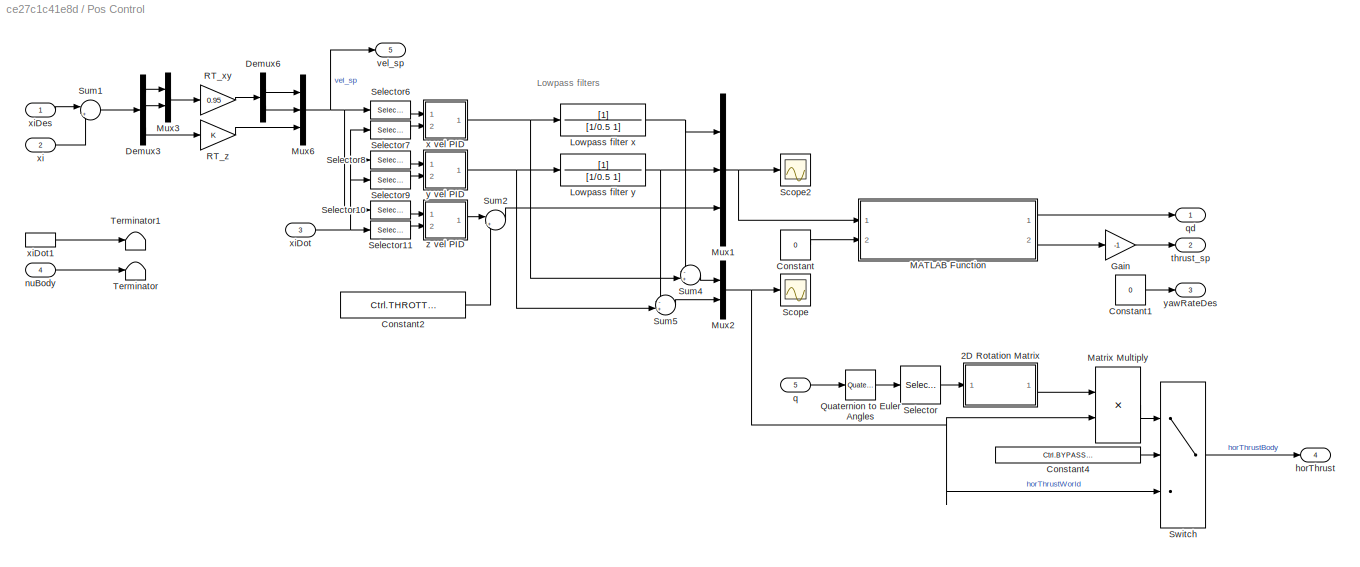
BLOCK [SubSystem] Pos Control
  Ports = [5, 5]
  RequestExecContextInheritance = off
BLOCK [SubSystem] Pos Control/2D Rotation Matrix
  Ports = [1, 1]
  RequestExecContextInheritance = off
BLOCK [Trigonometry] Pos Control/2D Rotation Matrix/Cos
  Operator = cos
  Ports = [1, 1]
BLOCK [Display] Pos Control/2D Rotation Matrix/Display
  Decimation = 1
  Ports = [1]
BLOCK [Gain] Pos Control/2D Rotation Matrix/Gain
  Gain = -1
BLOCK [Concatenate] Pos Control/2D Rotation Matrix/Matrix Concatenate
  ConcatenateDimension = 2
  Mode = Multidimensional array
  Ports = [2, 1]
BLOCK [Mux] Pos Control/2D Rotation Matrix/Mux
  DisplayOption = bar
  Inputs = 2
  Ports = [2, 1]
BLOCK [Mux] Pos Control/2D Rotation Matrix/Mux1
  DisplayOption = bar
  Inputs = 2
  Ports = [2, 1]
BLOCK [Outport] Pos Control/2D Rotation Matrix/R
  VectorParamsAs1DForOutWhenUnconnected = off
BLOCK [Trigonometry] Pos Control/2D Rotation Matrix/Sin
  Ports = [1, 1]
BLOCK [Inport] Pos Control/2D Rotation Matrix/psi
BLOCK [Constant] Pos Control/Constant
  Value = 0
BLOCK [Constant] Pos Control/Constant1
  Value = 0
BLOCK [Constant] Pos Control/Constant2
  Value = Ctrl.THROTTLE_HOVER
BLOCK [Constant] Pos Control/Constant4
  Value = Ctrl.BYPASS_ROTATION
BLOCK [Demux] Pos Control/Demux3
  Outputs = 3
  Ports = [1, 3]
BLOCK [Demux] Pos Control/Demux6
  Outputs = 2
  Ports = [1, 2]
BLOCK [Gain] Pos Control/Gain
  Gain = -1
BLOCK [TransferFcn] Pos Control/Lowpass filter x
  ContinuousStateAttributes = 'lpThrust_x'
  Denominator = [1/0.5 1]
BLOCK [TransferFcn] Pos Control/Lowpass filter y
  ContinuousStateAttributes = 'lpThrust_y'
  Denominator = [1/0.5 1]
BLOCK [SubSystem] Pos Control/MATLAB Function
  ErrorFcn = Stateflow.Translate.translate
  PermitHierarchicalResolution = ExplicitOnly
  Ports = [2, 2]
  RequestExecContextInheritance = off
  SFBlockType = MATLAB Function
  TreatAsAtomicUnit = on
BLOCK [Demux] Pos Control/MATLAB Function/ Demux 
  Outputs = 1
  Ports = [1, 1]
BLOCK [S-Function] Pos Control/MATLAB Function/ SFunction 
  EnableBusSupport = on
  FunctionName = sf_sfun
  PortCounts = [2 3]
  Ports = [2, 3]
  SFcnIsStateOwnerBlock = off
  SFunctionDeploymentMode = off
  Tag = Stateflow S-Function 7
BLOCK [Terminator] Pos Control/MATLAB Function/ Terminator 
BLOCK [Outport] Pos Control/MATLAB Function/q_sp
  VectorParamsAs1DForOutWhenUnconnected = off
BLOCK [Inport] Pos Control/MATLAB Function/thr_sp
BLOCK [Outport] Pos Control/MATLAB Function/thrust_sp
  Port = 2
  VectorParamsAs1DForOutWhenUnconnected = off
BLOCK [Inport] Pos Control/MATLAB Function/yaw_sp
  Port = 2
BLOCK [Product] Pos Control/Matrix Multiply
  Multiplication = Matrix(*)
  Ports = [2, 1]
BLOCK [Mux] Pos Control/Mux1
  DisplayOption = bar
  Inputs = 3
  Ports = [3, 1]
BLOCK [Mux] Pos Control/Mux2
  DisplayOption = bar
  Inputs = 2
  Ports = [2, 1]
BLOCK [Mux] Pos Control/Mux3
  DisplayOption = bar
  Inputs = 2
  Ports = [2, 1]
BLOCK [Mux] Pos Control/Mux6
  DisplayOption = bar
  Inputs = 3
  Ports = [3, 1]
BLOCK [Reference] Pos Control/Quaternion to Euler Angles  REF=QuaternionLibrary/Quaternion
to Euler Angles
  NameLocation = top
  Ports = [1, 1]
  SourceBlock = QuaternionLibrary/Quaternion\nto Euler Angles
BLOCK [Gain] Pos Control/RT_xy
  Gain = 0.95
  NameLocation = top
BLOCK [Gain] Pos Control/RT_z
BLOCK [Scope] Pos Control/Scope
  Floating = off
  NumInputPorts = 1
  Ports = [1]
  ScopeSpecificationString = Simulink.scopes.TimeScopeBlockCfg('CurrentConfiguration', extmgr.ConfigurationSet(extmgr.Configuration('Core','General UI',true),extmgr.Configuration('Core','Source UI',true),extmgr.Configuration('Sources','WiredSimulink',true,'DataLoggingVariableName','ScopeData1'),extmgr.Configuration('Visuals','Time Domain',true,'SerializedDisplays',{struct('MinYLimReal','-0.00432','MaxYLimReal','0.0389','YLabe...<+1408ch>
BLOCK [Scope] Pos Control/Scope2
  Floating = off
  NumInputPorts = 1
  Ports = [1]
  ScopeSpecificationString = Simulink.scopes.TimeScopeBlockCfg('CurrentConfiguration', extmgr.ConfigurationSet(extmgr.Configuration('Core','General UI',true),extmgr.Configuration('Core','Source UI',true),extmgr.Configuration('Sources','WiredSimulink',true,'DataLoggingVariableName','ScopeData1'),extmgr.Configuration('Visuals','Time Domain',true,'SerializedDisplays',{struct('MinYLimReal','-0.62748','MaxYLimReal','0.09837','YLab...<+1448ch>
BLOCK [Selector] Pos Control/Selector
  IndexOptions = Index vector (dialog)
  Indices = 3
  InputPortWidth = 3
  NameLocation = top
  OutputSizes = 1
  Ports = [1, 1]
BLOCK [Selector] Pos Control/Selector10
  IndexOptions = Index vector (dialog)
  Indices = 3
  InputPortWidth = 3
  OutputSizes = 1
  Ports = [1, 1]
BLOCK [Selector] Pos Control/Selector11
  IndexOptions = Index vector (dialog)
  Indices = 3
  InputPortWidth = 3
  OutputSizes = 1
  Ports = [1, 1]
BLOCK [Selector] Pos Control/Selector6
  IndexOptions = Index vector (dialog)
  Indices = 1
  InputPortWidth = 3
  OutputSizes = 1
  Ports = [1, 1]
BLOCK [Selector] Pos Control/Selector7
  IndexOptions = Index vector (dialog)
  Indices = 1
  InputPortWidth = 3
  OutputSizes = 1
  Ports = [1, 1]
BLOCK [Selector] Pos Control/Selector8
  IndexOptions = Index vector (dialog)
  Indices = 2
  InputPortWidth = 3
  OutputSizes = 1
  Ports = [1, 1]
BLOCK [Selector] Pos Control/Selector9
  IndexOptions = Index vector (dialog)
  Indices = 2
  InputPortWidth = 3
  OutputSizes = 1
  Ports = [1, 1]
BLOCK [Sum] Pos Control/Sum1
  Inputs = |+-
  Ports = [2, 1]
BLOCK [Sum] Pos Control/Sum2
  Inputs = |+-
  Ports = [2, 1]
BLOCK [Sum] Pos Control/Sum4
  Inputs = -+|
  Ports = [2, 1]
BLOCK [Sum] Pos Control/Sum5
  Inputs = -+|
  Ports = [2, 1]
BLOCK [Switch] Pos Control/Switch
  Criteria = u2 ~= 0
  InputSameDT = off
  SaturateOnIntegerOverflow = off
BLOCK [Terminator] Pos Control/Terminator
BLOCK [Terminator] Pos Control/Terminator1
BLOCK [Outport] Pos Control/horThrust
  Port = 4
  PortDimensions = 2
  VectorParamsAs1DForOutWhenUnconnected = off
BLOCK [Inport] Pos Control/nuBody
  Port = 4
BLOCK [Inport] Pos Control/q
  Port = 5
BLOCK [Outport] Pos Control/qd
  VectorParamsAs1DForOutWhenUnconnected = off
BLOCK [Outport] Pos Control/thrust_sp
  Port = 2
  VectorParamsAs1DForOutWhenUnconnected = off
BLOCK [Outport] Pos Control/vel_sp
  Port = 5
  Unit = m/s
  VectorParamsAs1DForOutWhenUnconnected = off
BLOCK [SubSystem] Pos Control/x vel PID
  Ports = [2, 1]
  RequestExecContextInheritance = off
BLOCK [Sum] Pos Control/x vel PID/Add
  IconShape = rectangular
  Inputs = ++-
  Ports = [3, 1]
BLOCK [Gain] Pos Control/x vel PID/D
  Gain = PID_D
BLOCK [TransferFcn] Pos Control/x vel PID/D filter
  ContinuousStateAttributes = PID_D_STATENAME
  Denominator = [1/(PID_FC*2*pi) 1]
  Numerator = [1 0]
BLOCK [Gain] Pos Control/x vel PID/I
  Gain = PID_I
BLOCK [Integrator] Pos Control/x vel PID/Integrator1
  ContinuousStateAttributes = PID_I_STATENAME
  LowerSaturationLimit = -0.3
  Ports = [1, 1]
  UpperSaturationLimit = 0.3
BLOCK [Outport] Pos Control/x vel PID/Out
  VectorParamsAs1DForOutWhenUnconnected = off
BLOCK [Gain] Pos Control/x vel PID/P
  Gain = PID_P
BLOCK [Sum] Pos Control/x vel PID/Sum
  Inputs = |+-
  Ports = [2, 1]
BLOCK [Inport] Pos Control/x vel PID/meas
  Port = 2
BLOCK [Inport] Pos Control/x vel PID/ref
BLOCK [Inport] Pos Control/xi
  Port = 2
  PortDimensions = 3
BLOCK [Inport] Pos Control/xiDes
  PortDimensions = 3
BLOCK [Inport] Pos Control/xiDot
  Port = 3
  PortDimensions = 3
BLOCK [InportShadow] Pos Control/xiDot1
  Port = 3
  PortDimensions = 3
BLOCK [SubSystem] Pos Control/y vel PID
  Ports = [2, 1]
  RequestExecContextInheritance = off
BLOCK [Sum] Pos Control/y vel PID/Add
  IconShape = rectangular
  Inputs = ++-
  Ports = [3, 1]
BLOCK [Gain] Pos Control/y vel PID/D
  Gain = PID_D
BLOCK [TransferFcn] Pos Control/y vel PID/D filter
  ContinuousStateAttributes = PID_D_STATENAME
  Denominator = [1/(PID_FC*2*pi) 1]
  Numerator = [1 0]
BLOCK [Gain] Pos Control/y vel PID/I
  Gain = PID_I
BLOCK [Integrator] Pos Control/y vel PID/Integrator1
  ContinuousStateAttributes = PID_I_STATENAME
  LowerSaturationLimit = -0.3
  Ports = [1, 1]
  UpperSaturationLimit = 0.3
BLOCK [Outport] Pos Control/y vel PID/Out
  VectorParamsAs1DForOutWhenUnconnected = off
BLOCK [Gain] Pos Control/y vel PID/P
  Gain = PID_P
BLOCK [Sum] Pos Control/y vel PID/Sum
  Inputs = |+-
  Ports = [2, 1]
BLOCK [Inport] Pos Control/y vel PID/meas
  Port = 2
BLOCK [Inport] Pos Control/y vel PID/ref
BLOCK [Outport] Pos Control/yawRateDes
  Port = 3
  Unit = rad/s
  VectorParamsAs1DForOutWhenUnconnected = off
BLOCK [SubSystem] Pos Control/z vel PID
  Ports = [2, 1]
  RequestExecContextInheritance = off
BLOCK [Sum] Pos Control/z vel PID/Add
  IconShape = rectangular
  Inputs = ++-
  Ports = [3, 1]
BLOCK [Gain] Pos Control/z vel PID/D
  Gain = PID_D
BLOCK [TransferFcn] Pos Control/z vel PID/D filter
  ContinuousStateAttributes = PID_D_STATENAME
  Denominator = [1/(PID_FC*2*pi) 1]
  Numerator = [1 0]
BLOCK [Gain] Pos Control/z vel PID/I
  Gain = PID_I
BLOCK [Integrator] Pos Control/z vel PID/Integrator1
  ContinuousStateAttributes = PID_I_STATENAME
  LowerSaturationLimit = -0.3
  Ports = [1, 1]
  UpperSaturationLimit = 0.3
BLOCK [Outport] Pos Control/z vel PID/Out
  VectorParamsAs1DForOutWhenUnconnected = off
BLOCK [Gain] Pos Control/z vel PID/P
  Gain = PID_P
BLOCK [Sum] Pos Control/z vel PID/Sum
  Inputs = |+-
  Ports = [2, 1]
BLOCK [Inport] Pos Control/z vel PID/meas
  Port = 2
BLOCK [Inport] Pos Control/z vel PID/ref
BLOCK [Scope] Position
  Floating = off
  NumInputPorts = 3
  Ports = [3]
  ScopeSpecificationString = Simulink.scopes.TimeScopeBlockCfg('CurrentConfiguration', extmgr.ConfigurationSet(extmgr.Configuration('Core','General UI',true),extmgr.Configuration('Core','Source UI',true),extmgr.Configuration('Sources','WiredSimulink',true,'DataLoggingVariableName','ScopeData7'),extmgr.Configuration('Visuals','Time Domain',true,'SerializedDisplays',{struct('MinYLimReal','-0.39983','MaxYLimReal','0.04443','YLab...<+2777ch>
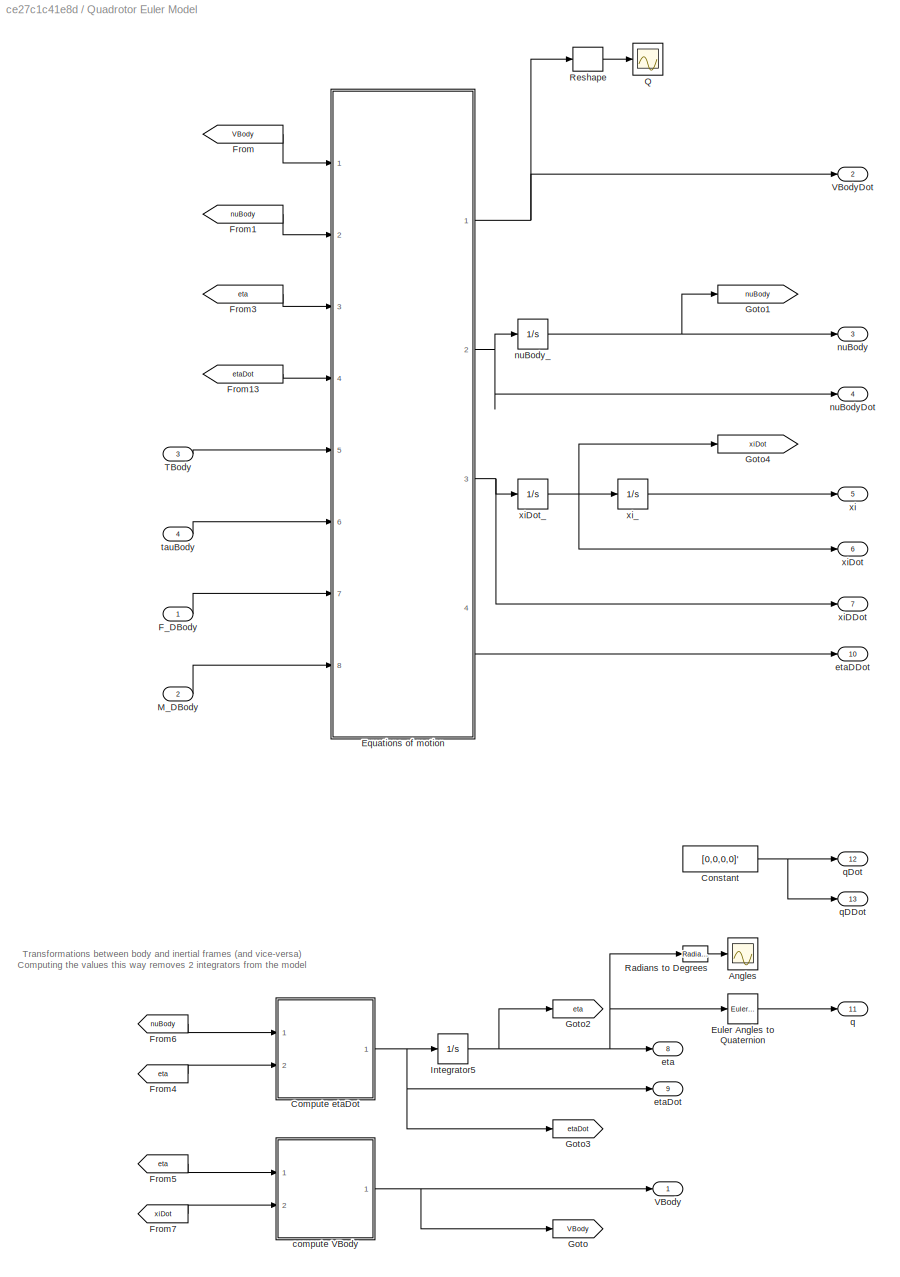
BLOCK [SubSystem] Quadrotor Euler Model
  Ports = [4, 13]
  RequestExecContextInheritance = off
BLOCK [Scope] Quadrotor Euler Model/Angles
  Floating = off
  NumInputPorts = 1
  Ports = [1]
  ScopeSpecificationString = Simulink.scopes.TimeScopeBlockCfg('CurrentConfiguration', extmgr.ConfigurationSet(extmgr.Configuration('Core','General UI',true),extmgr.Configuration('Core','Source UI',true),extmgr.Configuration('Sources','WiredSimulink',true,'DataLoggingVariableName','ScopeData1','DataLoggingLimitDataPoints',true,'DataLoggingSaveFormat','Array','DataLoggingDecimation','1','DataLoggingDecimateData',true),extmgr.C...<+1596ch>
BLOCK [SubSystem] Quadrotor Euler Model/Compute etaDot
  ErrorFcn = Stateflow.Translate.translate
  PermitHierarchicalResolution = ExplicitOnly
  Ports = [2, 1]
  RequestExecContextInheritance = off
  SFBlockType = MATLAB Function
  TreatAsAtomicUnit = on
BLOCK [Demux] Quadrotor Euler Model/Compute etaDot/ Demux 
  Outputs = 1
  Ports = [1, 1]
BLOCK [S-Function] Quadrotor Euler Model/Compute etaDot/ SFunction 
  EnableBusSupport = on
  FunctionName = sf_sfun
  PortCounts = [2 2]
  Ports = [2, 2]
  SFcnIsStateOwnerBlock = off
  SFunctionDeploymentMode = off
  Tag = Stateflow S-Function 12
BLOCK [Terminator] Quadrotor Euler Model/Compute etaDot/ Terminator 
BLOCK [Inport] Quadrotor Euler Model/Compute etaDot/eta
  Port = 2
BLOCK [Outport] Quadrotor Euler Model/Compute etaDot/etaDot
  VectorParamsAs1DForOutWhenUnconnected = off
BLOCK [Inport] Quadrotor Euler Model/Compute etaDot/nuBody
BLOCK [Constant] Quadrotor Euler Model/Constant
  Value = [0,0,0,0]'
BLOCK [SubSystem] Quadrotor Euler Model/Equations of motion
  ErrorFcn = Stateflow.Translate.translate
  PermitHierarchicalResolution = ExplicitOnly
  Ports = [8, 4]
  RequestExecContextInheritance = off
  SFBlockType = MATLAB Function
  TreatAsAtomicUnit = on
BLOCK [Demux] Quadrotor Euler Model/Equations of motion/ Demux 
  Outputs = 1
  Ports = [1, 1]
BLOCK [S-Function] Quadrotor Euler Model/Equations of motion/ SFunction 
  EnableBusSupport = on
  FunctionName = sf_sfun
  Parameters = Uav
  PortCounts = [8 5]
  Ports = [8, 5]
  SFcnIsStateOwnerBlock = off
  SFunctionDeploymentMode = off
  Tag = Stateflow S-Function 1
BLOCK [Terminator] Quadrotor Euler Model/Equations of motion/ Terminator 
BLOCK [Inport] Quadrotor Euler Model/Equations of motion/F_D
  Port = 7
BLOCK [Inport] Quadrotor Euler Model/Equations of motion/M_D
  Port = 8
BLOCK [Inport] Quadrotor Euler Model/Equations of motion/TBody
  Port = 5
BLOCK [Inport] Quadrotor Euler Model/Equations of motion/VBody
BLOCK [Outport] Quadrotor Euler Model/Equations of motion/VBodyDot
  VectorParamsAs1DForOutWhenUnconnected = off
BLOCK [Inport] Quadrotor Euler Model/Equations of motion/eta
  Port = 3
BLOCK [Outport] Quadrotor Euler Model/Equations of motion/etaDDot
  Port = 4
  VectorParamsAs1DForOutWhenUnconnected = off
BLOCK [Inport] Quadrotor Euler Model/Equations of motion/etaDot
  Port = 4
BLOCK [Inport] Quadrotor Euler Model/Equations of motion/nuBody
  Port = 2
BLOCK [Outport] Quadrotor Euler Model/Equations of motion/nuBodyDot
  Port = 2
  VectorParamsAs1DForOutWhenUnconnected = off
BLOCK [Inport] Quadrotor Euler Model/Equations of motion/tauBody
  Port = 6
BLOCK [Outport] Quadrotor Euler Model/Equations of motion/xiDDot
  Port = 3
  VectorParamsAs1DForOutWhenUnconnected = off
BLOCK [Reference] Quadrotor Euler Model/Euler Angles to Quaternion  REF=QuaternionLibrary/Euler Angles
to Quaternion
  Ports = [1, 1]
  SourceBlock = QuaternionLibrary/Euler Angles\nto Quaternion
BLOCK [Inport] Quadrotor Euler Model/F_DBody
  Unit = N
BLOCK [From] Quadrotor Euler Model/From
  GotoTag = VBody
BLOCK [From] Quadrotor Euler Model/From1
  GotoTag = nuBody
BLOCK [From] Quadrotor Euler Model/From13
  GotoTag = etaDot
BLOCK [From] Quadrotor Euler Model/From3
  GotoTag = eta
BLOCK [From] Quadrotor Euler Model/From4
  GotoTag = eta
BLOCK [From] Quadrotor Euler Model/From5
  GotoTag = eta
BLOCK [From] Quadrotor Euler Model/From6
  GotoTag = nuBody
BLOCK [From] Quadrotor Euler Model/From7
  GotoTag = xiDot
BLOCK [Goto] Quadrotor Euler Model/Goto
  GotoTag = VBody
BLOCK [Goto] Quadrotor Euler Model/Goto1
  GotoTag = nuBody
BLOCK [Goto] Quadrotor Euler Model/Goto2
  GotoTag = eta
BLOCK [Goto] Quadrotor Euler Model/Goto3
  GotoTag = etaDot
BLOCK [Goto] Quadrotor Euler Model/Goto4
  GotoTag = xiDot
BLOCK [Integrator] Quadrotor Euler Model/Integrator5
  ContinuousStateAttributes = 'eta'
  InitialCondition = Initial.ETA
  Ports = [1, 1]
BLOCK [Inport] Quadrotor Euler Model/M_DBody
  Port = 2
  Unit = N*m
BLOCK [Scope] Quadrotor Euler Model/Q
  Floating = off
  NumInputPorts = 1
  Ports = [1]
  ScopeSpecificationString = Simulink.scopes.TimeScopeBlockCfg('CurrentConfiguration', extmgr.ConfigurationSet(extmgr.Configuration('Core','General UI',true),extmgr.Configuration('Core','Source UI',true),extmgr.Configuration('Sources','WiredSimulink',true,'DataLoggingVariableName','ScopeData3','DataLoggingLimitDataPoints',true,'DataLoggingSaveFormat','Array','DataLoggingDecimation','1','DataLoggingDecimateData',true),extmgr.C...<+1517ch>
BLOCK [Reference] Quadrotor Euler Model/Radians to Degrees  REF=simulink_extras/Transformations/Radians
to Degrees
  Ports = [1, 1]
  SourceBlock = simulink_extras/Transformations/Radians\nto Degrees
  SourceProductBaseCode = SL
  SourceType = RadiansToDegrees
BLOCK [Reshape] Quadrotor Euler Model/Reshape
  OutputDimensionality = Column vector (2-D)
  Ports = [1, 1]
BLOCK [Inport] Quadrotor Euler Model/TBody
  Port = 3
  Unit = N
BLOCK [Outport] Quadrotor Euler Model/VBody
  Unit = m/s
  VectorParamsAs1DForOutWhenUnconnected = off
BLOCK [Outport] Quadrotor Euler Model/VBodyDot
  Port = 2
  Unit = m/s^2
  VectorParamsAs1DForOutWhenUnconnected = off
BLOCK [SubSystem] Quadrotor Euler Model/compute VBody
  ErrorFcn = Stateflow.Translate.translate
  PermitHierarchicalResolution = ExplicitOnly
  Ports = [2, 1]
  RequestExecContextInheritance = off
  SFBlockType = MATLAB Function
  TreatAsAtomicUnit = on
BLOCK [Demux] Quadrotor Euler Model/compute VBody/ Demux 
  Outputs = 1
  Ports = [1, 1]
BLOCK [S-Function] Quadrotor Euler Model/compute VBody/ SFunction 
  EnableBusSupport = on
  FunctionName = sf_sfun
  PortCounts = [2 2]
  Ports = [2, 2]
  SFcnIsStateOwnerBlock = off
  SFunctionDeploymentMode = off
  Tag = Stateflow S-Function 14
BLOCK [Terminator] Quadrotor Euler Model/compute VBody/ Terminator 
BLOCK [Outport] Quadrotor Euler Model/compute VBody/VBody
  VectorParamsAs1DForOutWhenUnconnected = off
BLOCK [Inport] Quadrotor Euler Model/compute VBody/eta
BLOCK [Inport] Quadrotor Euler Model/compute VBody/xiDot
  Port = 2
BLOCK [Outport] Quadrotor Euler Model/eta
  Port = 8
  Unit = rad
  VectorParamsAs1DForOutWhenUnconnected = off
BLOCK [Outport] Quadrotor Euler Model/etaDDot
  Port = 10
  Unit = rad/s^2
  VectorParamsAs1DForOutWhenUnconnected = off
BLOCK [Outport] Quadrotor Euler Model/etaDot
  Port = 9
  Unit = rad/s
  VectorParamsAs1DForOutWhenUnconnected = off
BLOCK [Outport] Quadrotor Euler Model/nuBody
  Port = 3
  Unit = rad/s
  VectorParamsAs1DForOutWhenUnconnected = off
BLOCK [Outport] Quadrotor Euler Model/nuBodyDot
  Port = 4
  Unit = rad/s^2
  VectorParamsAs1DForOutWhenUnconnected = off
BLOCK [Integrator] Quadrotor Euler Model/nuBody_
  ContinuousStateAttributes = 'nuBody'
  InitialCondition = Initial.NU_BODY
  Ports = [1, 1]
BLOCK [Outport] Quadrotor Euler Model/q
  Port = 11
  VectorParamsAs1DForOutWhenUnconnected = off
BLOCK [Outport] Quadrotor Euler Model/qDDot
  Port = 13
  VectorParamsAs1DForOutWhenUnconnected = off
BLOCK [Outport] Quadrotor Euler Model/qDot
  Port = 12
  VectorParamsAs1DForOutWhenUnconnected = off
BLOCK [Inport] Quadrotor Euler Model/tauBody
  Port = 4
  Unit = N*m
BLOCK [Outport] Quadrotor Euler Model/xi
  Port = 5
  Unit = m
  VectorParamsAs1DForOutWhenUnconnected = off
BLOCK [Outport] Quadrotor Euler Model/xiDDot
  Port = 7
  Unit = m/s^2
  VectorParamsAs1DForOutWhenUnconnected = off
BLOCK [Outport] Quadrotor Euler Model/xiDot
  Port = 6
  Unit = m/s
  VectorParamsAs1DForOutWhenUnconnected = off
BLOCK [Integrator] Quadrotor Euler Model/xiDot_
  ContinuousStateAttributes = 'xiDot'
  InitialCondition = Initial.XI_DOT
  Ports = [1, 1]
BLOCK [Integrator] Quadrotor Euler Model/xi_
  ContinuousStateAttributes = 'xi'
  InitialCondition = Initial.XI
  Ports = [1, 1]
BLOCK [Reference] Quaternion to Euler Angles  REF=QuaternionLibrary/Quaternion
to Euler Angles
  Ports = [1, 1]
  SourceBlock = QuaternionLibrary/Quaternion\nto Euler Angles
BLOCK [Reference] Radians to Degrees   REF=QuaternionLibrary/Radians
to Degrees 
  Ports = [1, 1]
  SourceBlock = QuaternionLibrary/Radians\nto Degrees
BLOCK [Reference] Radians to Degrees 1  REF=QuaternionLibrary/Radians
to Degrees 
  Ports = [1, 1]
  SourceBlock = QuaternionLibrary/Radians\nto Degrees
BLOCK [Reference] Radians//s to Degrees//s  REF=QuaternionLibrary/Radians//s
to Degrees//s
  Ports = [1, 1]
  SourceBlock = QuaternionLibrary/Radians//s\nto Degrees//s
BLOCK [Reference] Radians//s to Degrees//s1  REF=QuaternionLibrary/Radians//s
to Degrees//s
  Ports = [1, 1]
  SourceBlock = QuaternionLibrary/Radians//s\nto Degrees//s
BLOCK [Selector] Selector
  IndexOptions = Index vector (dialog)
  Indices = [1:4]
  InputPortWidth = 8
  OutputSizes = 1
  Ports = [1, 1]
BLOCK [Selector] Selector1
  IndexOptions = Index vector (dialog)
  Indices = 1
  InputPortWidth = 3
  OutputSizes = 1
  Ports = [1, 1]
BLOCK [Selector] Selector10
  IndexOptions = Index vector (dialog)
  Indices = 3
  InputPortWidth = 3
  OutputSizes = 1
  Ports = [1, 1]
BLOCK [Selector] Selector11
  IndexOptions = Index vector (dialog)
  Indices = 2
  InputPortWidth = 3
  OutputSizes = 1
  Ports = [1, 1]
BLOCK [Selector] Selector12
  IndexOptions = Index vector (dialog)
  Indices = 3
  InputPortWidth = 3
  OutputSizes = 1
  Ports = [1, 1]
BLOCK [Selector] Selector2
  IndexOptions = Index vector (dialog)
  Indices = 1
  InputPortWidth = 3
  OutputSizes = 1
  Ports = [1, 1]
BLOCK [Selector] Selector3
  IndexOptions = Index vector (dialog)
  Indices = 2
  InputPortWidth = 3
  OutputSizes = 1
  Ports = [1, 1]
BLOCK [Selector] Selector4
  IndexOptions = Index vector (dialog)
  Indices = 3
  InputPortWidth = 3
  OutputSizes = 1
  Ports = [1, 1]
BLOCK [Selector] Selector5
  IndexOptions = Index vector (dialog)
  Indices = 1
  InputPortWidth = 3
  OutputSizes = 1
  Ports = [1, 1]
BLOCK [Selector] Selector6
  IndexOptions = Index vector (dialog)
  Indices = 1
  InputPortWidth = 3
  OutputSizes = 1
  Ports = [1, 1]
BLOCK [Selector] Selector7
  IndexOptions = Index vector (dialog)
  Indices = 2
  InputPortWidth = 3
  OutputSizes = 1
  Ports = [1, 1]
BLOCK [Selector] Selector8
  IndexOptions = Index vector (dialog)
  Indices = 3
  InputPortWidth = 3
  OutputSizes = 1
  Ports = [1, 1]
BLOCK [Selector] Selector9
  IndexOptions = Index vector (dialog)
  Indices = 2
  InputPortWidth = 3
  OutputSizes = 1
  Ports = [1, 1]
BLOCK [Scope] Sim PWM
  Floating = off
  NumInputPorts = 1
  Ports = [1]
  ScopeSpecificationString = Simulink.scopes.TimeScopeBlockCfg('CurrentConfiguration', extmgr.ConfigurationSet(extmgr.Configuration('Core','General UI',true),extmgr.Configuration('Core','Source UI',true),extmgr.Configuration('Sources','WiredSimulink',true,'DataLoggingVariableName','ScopeData2'),extmgr.Configuration('Visuals','Time Domain',true,'SerializedDisplays',{struct('MinYLimReal','-0.50959','MaxYLimReal','0.32517','YLab...<+2347ch>
BLOCK [Sin] Sinusoidal input
  Amplitude = Wind.Ampl
  Bias = Wind.Bias
  Commented = on
  Frequency = Wind.Freq
  Ports = [0, 1]
  SampleTime = 0
BLOCK [Step] Step wind input
  After = Wind.StepFinal
  Before = Wind.StepInit
  Commented = on
  SampleTime = 0
  Time = Wind.StepTime
BLOCK [Sum] Sum1
  Inputs = |++
  Ports = [2, 1]
BLOCK [Sum] Sum2
  Inputs = -+|
  Ports = [2, 1]
BLOCK [Scope] TBody
  Floating = off
  NumInputPorts = 3
  Ports = [3]
  ScopeSpecificationString = Simulink.scopes.TimeScopeBlockCfg('CurrentConfiguration', extmgr.ConfigurationSet(extmgr.Configuration('Core','General UI',true),extmgr.Configuration('Core','Source UI',true),extmgr.Configuration('Sources','WiredSimulink',true,'DataLoggingVariableName','ScopeData8'),extmgr.Configuration('Visuals','Time Domain',true,'SerializedDisplays',{struct('MinYLimReal','-1.49155','MaxYLimReal','-0.06176','YLa...<+2760ch>
BLOCK [Scope] TMotorIndividual
  Floating = off
  NumInputPorts = 1
  Ports = [1]
  ScopeSpecificationString = Simulink.scopes.TimeScopeBlockCfg('CurrentConfiguration', extmgr.ConfigurationSet(extmgr.Configuration('Core','General UI',true),extmgr.Configuration('Core','Source UI',true),extmgr.Configuration('Sources','WiredSimulink',true,'DataLoggingVariableName','ScopeData2'),extmgr.Configuration('Visuals','Time Domain',true,'SerializedDisplays',{struct('MinYLimReal','-4.88299','MaxYLimReal','0.54255','YLab...<+1877ch>
BLOCK [Terminator] Terminator1
BLOCK [Terminator] Terminator2
BLOCK [Scope] Thrust setpoint
  Floating = off
  NumInputPorts = 1
  Ports = [1]
  ScopeSpecificationString = Simulink.scopes.TimeScopeBlockCfg('CurrentConfiguration', extmgr.ConfigurationSet(extmgr.Configuration('Core','General UI',true),extmgr.Configuration('Core','Source UI',true),extmgr.Configuration('Sources','WiredSimulink',true,'DataLoggingVariableName','ScopeData9'),extmgr.Configuration('Visuals','Time Domain',true,'SerializedDisplays',{struct('MinYLimReal','0.4727029','MaxYLimReal','0.4727113','Y...<+1460ch>
BLOCK [Inport] U
  PortDimensions = 3
BLOCK [FromWorkspace] Varying wind input
  Commented = on
  VariableName = windInput
BLOCK [Scope] Velocity
  Floating = off
  NumInputPorts = 3
  Ports = [3]
  ScopeSpecificationString = Simulink.scopes.TimeScopeBlockCfg('CurrentConfiguration', extmgr.ConfigurationSet(extmgr.Configuration('Core','General UI',true),extmgr.Configuration('Core','Source UI',true),extmgr.Configuration('Sources','WiredSimulink',true,'DataLoggingVariableName','ScopeData1'),extmgr.Configuration('Visuals','Time Domain',true,'SerializedDisplays',{struct('MinYLimReal','-0.00008','MaxYLimReal','0.00018','YLab...<+2822ch>
BLOCK [SubSystem] Vertical thrust compensation
  Commented = on
  Ports = [3, 2]
  RequestExecContextInheritance = off
BLOCK [Outport] Vertical thrust compensation/ horThrustBody
  Port = 2
  VectorParamsAs1DForOutWhenUnconnected = off
BLOCK [Outport] Vertical thrust compensation/ vertThurstComp
  VectorParamsAs1DForOutWhenUnconnected = off
BLOCK [From] Vertical thrust compensation/From
  GotoTag = vertComp1
BLOCK [From] Vertical thrust compensation/From1
  GotoTag = horThrust1
BLOCK [From] Vertical thrust compensation/From2
  GotoTag = vertComp2
BLOCK [From] Vertical thrust compensation/From3
  GotoTag = horThrust2
BLOCK [From] Vertical thrust compensation/From4
  GotoTag = vertComp3
BLOCK [From] Vertical thrust compensation/From5
  GotoTag = horThrust3
BLOCK [From] Vertical thrust compensation/From6
  GotoTag = vertComp4
BLOCK [From] Vertical thrust compensation/From7
  GotoTag = horThrust4
BLOCK [Goto] Vertical thrust compensation/Goto1
  GotoTag = vertComp2
BLOCK [Goto] Vertical thrust compensation/Goto13
  GotoTag = vertComp1
BLOCK [Goto] Vertical thrust compensation/Goto2
  GotoTag = vertComp3
BLOCK [Goto] Vertical thrust compensation/Goto3
  GotoTag = horThrust1
BLOCK [Goto] Vertical thrust compensation/Goto4
  GotoTag = horThrust2
BLOCK [Goto] Vertical thrust compensation/Goto5
  GotoTag = horThrust3
BLOCK [Goto] Vertical thrust compensation/Goto6
  GotoTag = vertComp4
BLOCK [Goto] Vertical thrust compensation/Goto7
  GotoTag = horThrust4
BLOCK [Ground] Vertical thrust compensation/Ground
BLOCK [SubSystem] Vertical thrust compensation/Horizontal thrust control in body frame
  Commented = on
  Ports = [2, 2]
  RequestExecContextInheritance = off
  VariantControl = HorThrustBodyFrame
BLOCK [SubSystem] Vertical thrust compensation/Horizontal thrust control in body frame/2D Rotation Matrix
  Ports = [1, 1]
  RequestExecContextInheritance = off
BLOCK [Trigonometry] Vertical thrust compensation/Horizontal thrust control in body frame/2D Rotation Matrix/Cos
  Operator = cos
  Ports = [1, 1]
BLOCK [Trigonometry] Vertical thrust compensation/Horizontal thrust control in body frame/2D Rotation Matrix/Cos1
  Ports = [1, 1]
BLOCK [Trigonometry] Vertical thrust compensation/Horizontal thrust control in body frame/2D Rotation Matrix/Cos2
  Ports = [1, 1]
BLOCK [Trigonometry] Vertical thrust compensation/Horizontal thrust control in body frame/2D Rotation Matrix/Cos3
  Operator = cos
  Ports = [1, 1]
BLOCK [Display] Vertical thrust compensation/Horizontal thrust control in body frame/2D Rotation Matrix/Display
  Decimation = 1
  Ports = [1]
BLOCK [Gain] Vertical thrust compensation/Horizontal thrust control in body frame/2D Rotation Matrix/Gain
  Gain = -1
BLOCK [Concatenate] Vertical thrust compensation/Horizontal thrust control in body frame/2D Rotation Matrix/Matrix Concatenate
  ConcatenateDimension = 2
  Mode = Multidimensional array
  Ports = [2, 1]
BLOCK [Mux] Vertical thrust compensation/Horizontal thrust control in body frame/2D Rotation Matrix/Mux
  DisplayOption = bar
  Inputs = 2
  Ports = [2, 1]
BLOCK [Mux] Vertical thrust compensation/Horizontal thrust control in body frame/2D Rotation Matrix/Mux1
  DisplayOption = bar
  Inputs = 2
  Ports = [2, 1]
BLOCK [Outport] Vertical thrust compensation/Horizontal thrust control in body frame/2D Rotation Matrix/R
  VectorParamsAs1DForOutWhenUnconnected = off
BLOCK [Inport] Vertical thrust compensation/Horizontal thrust control in body frame/2D Rotation Matrix/psi
BLOCK [Product] Vertical thrust compensation/Horizontal thrust control in body frame/Matrix Multiply
  Multiplication = Matrix(*)
  Ports = [2, 1]
BLOCK [Reference] Vertical thrust compensation/Horizontal thrust control in body frame/Quaternion to Euler Angles  REF=QuaternionLibrary/Quaternion
to Euler Angles
  Ports = [1, 1]
  SourceBlock = QuaternionLibrary/Quaternion\nto Euler Angles
BLOCK [Selector] Vertical thrust compensation/Horizontal thrust control in body frame/Selector
  IndexOptions = Index vector (dialog)
  Indices = 3
  InputPortWidth = 3
  OutputSizes = 1
  Ports = [1, 1]
BLOCK [SubSystem] Vertical thrust compensation/Horizontal thrust control in body frame/Subsystem
  Ports = [2, 1]
  RequestExecContextInheritance = off
BLOCK [Trigonometry] Vertical thrust compensation/Horizontal thrust control in body frame/Subsystem/Acos
  Operator = acos
  Ports = [1, 1]
BLOCK [DotProduct] Vertical thrust compensation/Horizontal thrust control in body frame/Subsystem/Dot Product
  OutDataTypeStr = Inherit: Inherit via internal rule
BLOCK [DotProduct] Vertical thrust compensation/Horizontal thrust control in body frame/Subsystem/Dot Product1
  Commented = on
  OutDataTypeStr = Inherit: Inherit via internal rule
BLOCK [Gain] Vertical thrust compensation/Horizontal thrust control in body frame/Subsystem/Gain
  Commented = through
  Gain = -1
BLOCK [Gain] Vertical thrust compensation/Horizontal thrust control in body frame/Subsystem/Gain2
  Gain = 2
BLOCK [SubSystem] Vertical thrust compensation/Horizontal thrust control in body frame/Subsystem/L2 norm
  ErrorFcn = Stateflow.Translate.translate
  PermitHierarchicalResolution = ExplicitOnly
  Ports = [1, 1]
  RequestExecContextInheritance = off
  SFBlockType = MATLAB Function
  TreatAsAtomicUnit = on
BLOCK [Demux] Vertical thrust compensation/Horizontal thrust control in body frame/Subsystem/L2 norm/ Demux 
  Outputs = 1
  Ports = [1, 1]
BLOCK [S-Function] Vertical thrust compensation/Horizontal thrust control in body frame/Subsystem/L2 norm/ SFunction 
  EnableBusSupport = on
  FunctionName = sf_sfun
  PortCounts = [1 2]
  Ports = [1, 2]
  SFcnIsStateOwnerBlock = off
  SFunctionDeploymentMode = off
  Tag = Stateflow S-Function 13
BLOCK [Terminator] Vertical thrust compensation/Horizontal thrust control in body frame/Subsystem/L2 norm/ Terminator 
BLOCK [Inport] Vertical thrust compensation/Horizontal thrust control in body frame/Subsystem/L2 norm/u
BLOCK [Outport] Vertical thrust compensation/Horizontal thrust control in body frame/Subsystem/L2 norm/y
  VectorParamsAs1DForOutWhenUnconnected = off
BLOCK [Product] Vertical thrust compensation/Horizontal thrust control in body frame/Subsystem/Matrix Multiply1
  Multiplication = Matrix(*)
  Ports = [2, 1]
BLOCK [Product] Vertical thrust compensation/Horizontal thrust control in body frame/Subsystem/Multiply
  Inputs = ***
  Ports = [3, 1]
BLOCK [Mux] Vertical thrust compensation/Horizontal thrust control in body frame/Subsystem/Mux
  DisplayOption = bar
  Inputs = 2
  Ports = [2, 1]
BLOCK [Reference] Vertical thrust compensation/Horizontal thrust control in body frame/Subsystem/Quaternion to Rotation Matrix  REF=QuaternionLibrary/Quaternion
to Rotation Matrix
  Ports = [1, 1]
  SourceBlock = QuaternionLibrary/Quaternion\nto Rotation Matrix
BLOCK [Reference] Vertical thrust compensation/Horizontal thrust control in body frame/Subsystem/Quaternion to Rotation Matrix Z  REF=QuaternionLibrary/Quaternion
to Rotation Matrix Z
  Ports = [1, 1]
  SourceBlock = QuaternionLibrary/Quaternion\nto Rotation Matrix Z
BLOCK [Selector] Vertical thrust compensation/Horizontal thrust control in body frame/Subsystem/Selector2
  IndexOptions = Index vector (dialog)
  Indices = 1
  InputPortWidth = 4
  OutputSizes = 1
  Ports = [1, 1]
BLOCK [Signum] Vertical thrust compensation/Horizontal thrust control in body frame/Subsystem/Sign
BLOCK [Sqrt] Vertical thrust compensation/Horizontal thrust control in body frame/Subsystem/Sqrt
  Commented = on
BLOCK [Trigonometry] Vertical thrust compensation/Horizontal thrust control in body frame/Subsystem/Tan
  Operator = tan
  Ports = [1, 1]
BLOCK [Reference] Vertical thrust compensation/Horizontal thrust control in body frame/Subsystem/Vectors to Quaternion  REF=QuaternionLibrary/Vectors
to Quaternion
  Ports = [2, 1]
  SourceBlock = QuaternionLibrary/Vectors\nto Quaternion
BLOCK [Constant] Vertical thrust compensation/Horizontal thrust control in body frame/Subsystem/Z in world frame
  Value = [0; 0; 1]
BLOCK [Inport] Vertical thrust compensation/Horizontal thrust control in body frame/Subsystem/horThrust
  NameLocation = top
  Port = 2
BLOCK [InportShadow] Vertical thrust compensation/Horizontal thrust control in body frame/Subsystem/horThrust1
  Port = 2
BLOCK [Inport] Vertical thrust compensation/Horizontal thrust control in body frame/Subsystem/q
BLOCK [Outport] Vertical thrust compensation/Horizontal thrust control in body frame/Subsystem/thrustComp
  VectorParamsAs1DForOutWhenUnconnected = off
BLOCK [Constant] Vertical thrust compensation/Horizontal thrust control in body frame/Subsystem/z element
  Value = 0
BLOCK [Inport] Vertical thrust compensation/Horizontal thrust control in body frame/horThrust
  Port = 2
BLOCK [Outport] Vertical thrust compensation/Horizontal thrust control in body frame/horThrustBody
  Port = 2
  VectorParamsAs1DForOutWhenUnconnected = off
BLOCK [Inport] Vertical thrust compensation/Horizontal thrust control in body frame/q
BLOCK [Outport] Vertical thrust compensation/Horizontal thrust control in body frame/vertThurstComp
  VectorParamsAs1DForOutWhenUnconnected = off
BLOCK [SubSystem] Vertical thrust compensation/Horizontal thrust control in world frame
  Commented = on
  Ports = [2, 2]
  RequestExecContextInheritance = off
  VariantControl = HorThrustWorldFrame
BLOCK [Outport] Vertical thrust compensation/Horizontal thrust control in world frame/ horThrustBody
  Port = 2
  VectorParamsAs1DForOutWhenUnconnected = off
BLOCK [Outport] Vertical thrust compensation/Horizontal thrust control in world frame/ vertThurstComp
  VectorParamsAs1DForOutWhenUnconnected = off
BLOCK [Demux] Vertical thrust compensation/Horizontal thrust control in world frame/Demux
  Outputs = 3
  Ports = [1, 3]
BLOCK [Gain] Vertical thrust compensation/Horizontal thrust control in world frame/Gain
  Commented = through
  Gain = -1
BLOCK [Product] Vertical thrust compensation/Horizontal thrust control in world frame/Matrix Multiply1
  Multiplication = Matrix(*)
  Ports = [2, 1]
BLOCK [Mux] Vertical thrust compensation/Horizontal thrust control in world frame/Mux
  DisplayOption = bar
  Inputs = 2
  Ports = [2, 1]
BLOCK [Mux] Vertical thrust compensation/Horizontal thrust control in world frame/Mux1
  DisplayOption = bar
  Inputs = 2
  Ports = [2, 1]
BLOCK [Reference] Vertical thrust compensation/Horizontal thrust control in world frame/Quaternion to Rotation Matrix  REF=QuaternionLibrary/Quaternion
to Rotation Matrix
  Ports = [1, 1]
  SourceBlock = QuaternionLibrary/Quaternion\nto Rotation Matrix
BLOCK [Math] Vertical thrust compensation/Horizontal thrust control in world frame/Transpose
  Operator = transpose
  Ports = [1, 1]
  SignedPower = on
BLOCK [Inport] Vertical thrust compensation/Horizontal thrust control in world frame/horThrust 
  Port = 2
BLOCK [Inport] Vertical thrust compensation/Horizontal thrust control in world frame/q 
BLOCK [Constant] Vertical thrust compensation/Horizontal thrust control in world frame/z element
  Value = 0
BLOCK [MultiPortSwitch] Vertical thrust compensation/Multiport Switch
  InputSameDT = off
  Inputs = 4
  Ports = [5, 1]
  SaturateOnIntegerOverflow = off
BLOCK [MultiPortSwitch] Vertical thrust compensation/Multiport Switch1
  InputSameDT = off
  Inputs = 4
  Ports = [5, 1]
  SaturateOnIntegerOverflow = off
BLOCK [SubSystem] Vertical thrust compensation/No vertical compensation
  Ports = [2, 2]
  RequestExecContextInheritance = off
  VariantControl = HorThrustNoVertComp
BLOCK [Outport] Vertical thrust compensation/No vertical compensation/ horThrustBody
  Port = 2
  VectorParamsAs1DForOutWhenUnconnected = off
BLOCK [Outport] Vertical thrust compensation/No vertical compensation/ vertThurstComp
  VectorParamsAs1DForOutWhenUnconnected = off
BLOCK [SubSystem] Vertical thrust compensation/No vertical compensation/2D Rotation Matrix
  Ports = [1, 1]
  RequestExecContextInheritance = off
BLOCK [Trigonometry] Vertical thrust compensation/No vertical compensation/2D Rotation Matrix/Cos
  Operator = cos
  Ports = [1, 1]
BLOCK [Display] Vertical thrust compensation/No vertical compensation/2D Rotation Matrix/Display
  Decimation = 1
  Ports = [1]
BLOCK [Gain] Vertical thrust compensation/No vertical compensation/2D Rotation Matrix/Gain
  Gain = -1
BLOCK [Concatenate] Vertical thrust compensation/No vertical compensation/2D Rotation Matrix/Matrix Concatenate
  ConcatenateDimension = 2
  Mode = Multidimensional array
  Ports = [2, 1]
BLOCK [Mux] Vertical thrust compensation/No vertical compensation/2D Rotation Matrix/Mux
  DisplayOption = bar
  Inputs = 2
  Ports = [2, 1]
BLOCK [Mux] Vertical thrust compensation/No vertical compensation/2D Rotation Matrix/Mux1
  DisplayOption = bar
  Inputs = 2
  Ports = [2, 1]
BLOCK [Outport] Vertical thrust compensation/No vertical compensation/2D Rotation Matrix/R
  VectorParamsAs1DForOutWhenUnconnected = off
BLOCK [Trigonometry] Vertical thrust compensation/No vertical compensation/2D Rotation Matrix/Sin
  Ports = [1, 1]
BLOCK [Inport] Vertical thrust compensation/No vertical compensation/2D Rotation Matrix/psi
BLOCK [Ground] Vertical thrust compensation/No vertical compensation/Ground
BLOCK [Product] Vertical thrust compensation/No vertical compensation/Matrix Multiply
  Multiplication = Matrix(*)
  Ports = [2, 1]
BLOCK [Reference] Vertical thrust compensation/No vertical compensation/Quaternion to Euler Angles  REF=QuaternionLibrary/Quaternion
to Euler Angles
  Ports = [1, 1]
  SourceBlock = QuaternionLibrary/Quaternion\nto Euler Angles
BLOCK [Scope] Vertical thrust compensation/No vertical compensation/Scope
  Floating = off
  NumInputPorts = 1
  Ports = [1]
  ScopeSpecificationString = Simulink.scopes.TimeScopeBlockCfg('CurrentConfiguration', extmgr.ConfigurationSet(extmgr.Configuration('Core','General UI',true),extmgr.Configuration('Core','Source UI',true),extmgr.Configuration('Sources','WiredSimulink',true,'DataLoggingVariableName','ScopeData1'),extmgr.Configuration('Visuals','Time Domain',true,'SerializedDisplays',{struct('MinYLimReal','-0.0000000000014','MaxYLimReal','0.0000...<+1454ch>
BLOCK [Selector] Vertical thrust compensation/No vertical compensation/Selector
  IndexOptions = Index vector (dialog)
  Indices = 3
  InputPortWidth = 3
  OutputSizes = 1
  Ports = [1, 1]
BLOCK [Inport] Vertical thrust compensation/No vertical compensation/horThrust 
  Port = 2
BLOCK [Inport] Vertical thrust compensation/No vertical compensation/q 
BLOCK [Inport] Vertical thrust compensation/compType
  NameLocation = top
  Port = 3
BLOCK [Inport] Vertical thrust compensation/horThrust 
  Port = 2
BLOCK [Inport] Vertical thrust compensation/q 
BLOCK [Scope] Wind Input
  Floating = off
  NumInputPorts = 1
  Ports = [1]
  ScopeSpecificationString = Simulink.scopes.TimeScopeBlockCfg('CurrentConfiguration', extmgr.ConfigurationSet(extmgr.Configuration('Core','General UI',true),extmgr.Configuration('Core','Source UI',true),extmgr.Configuration('Sources','WiredSimulink',true,'DataLoggingVariableName','ScopeData1'),extmgr.Configuration('Visuals','Time Domain',true,'SerializedDisplays',{struct('MinYLimReal','-0.5625','MaxYLimReal','5.0625','YLabel...<+1426ch>
BLOCK [From] att_from_q
  GotoTag = q
  Tag = q
BLOCK [Scope] realPwm
  Floating = off
  NumInputPorts = 1
  Ports = [1]
  ScopeSpecificationString = Simulink.scopes.TimeScopeBlockCfg('CurrentConfiguration', extmgr.ConfigurationSet(extmgr.Configuration('Core','General UI',true),extmgr.Configuration('Core','Source UI',true),extmgr.Configuration('Sources','WiredSimulink',true,'DataLoggingVariableName','ScopeData2'),extmgr.Configuration('Visuals','Time Domain',true,'SerializedDisplays',{struct('MinYLimReal','1173.65246','MaxYLimReal','1844.0675','...<+1591ch>
BLOCK [Scope] tauBody
  Floating = off
  NumInputPorts = 3
  Ports = [3]
  ScopeSpecificationString = Simulink.scopes.TimeScopeBlockCfg('CurrentConfiguration', extmgr.ConfigurationSet(extmgr.Configuration('Core','General UI',true),extmgr.Configuration('Core','Source UI',true),extmgr.Configuration('Sources','WiredSimulink',true,'DataLoggingVariableName','ScopeData10'),extmgr.Configuration('Visuals','Time Domain',true,'SerializedDisplays',{struct('MinYLimReal','-0.0000000000007','MaxYLimReal','0.000...<+2802ch>
BLOCK [Scope] tauMotorIndividual
  Floating = off
  NumInputPorts = 1
  Ports = [1]
  ScopeSpecificationString = Simulink.scopes.TimeScopeBlockCfg('CurrentConfiguration', extmgr.ConfigurationSet(extmgr.Configuration('Core','General UI',true),extmgr.Configuration('Core','Source UI',true),extmgr.Configuration('Sources','WiredSimulink',true,'DataLoggingVariableName','ScopeData1'),extmgr.Configuration('Visuals','Time Domain',true,'SerializedDisplays',{struct('MinYLimReal','-0.43698','MaxYLimReal','0.43698','YLab...<+1877ch>
ANNOTATION (root): Important Notes NED coordinate system used, therefore xBody faces forward, yBody faces to the right and zBody faces down. PX4 rotor assignment for quadcopter: 1: front right 2: back left 3: front left 4: back right Airframe reference available at: https://dev.px4.io/en/airframes/airframe_reference.html
ANNOTATION (root): Variables Description Variable Vector notation Frame Description xi [x y z] World Position eta [phi theta psi] World Roll pitch yaw orientation nuBody [p q r] Body Angular velocity q [qW qAx1 qAx2 qAx3] World Quaternion orientation Uav.BETA [beta1 ... betaN] Body Angle to motor (CCW)
ANNOTATION (root): Attitude Controller
ANNOTATION (root): Inputs
ANNOTATION (root): Position Controller
ANNOTATION (root): Information
ANNOTATION (root): Motor and Aero Dynamics
ANNOTATION (root): Plots
ANNOTATION (root): Applied Wind Speed
ANNOTATION (root): Plant
ANNOTATION Pos Control: Lowpass filters
ANNOTATION Quadrotor Euler Model: Transformations between body and inertial frames (and vice-versa) Computing the values this way removes 2 integrators from the model
ANNOTATION Vertical thrust compensation: Complete bypass for linearization
ANNOTATION Vertical thrust compensation/Horizontal thrust control in body frame/Subsystem: Bottow path finds whether to increase or decrease the mean vertical thrust (i.e. whether the current horizontal thrust vector is making the UAV ascend or descend, and then counteract it). Explanation: https://www.quora.com/Given-a-point-and-a-plane-how-would-you-determine-which-side-of-the-plane-the-point-lies
ANNOTATION Vertical thrust compensation/Horizontal thrust control in body frame/Subsystem: Find the angle of the shortest rotation between the world z-axis and UAV's (called gamma)
LINE Applied wind speed/Compute V_app2:1 -> Applied wind speed/Sum1:2
LINE Applied wind speed/Gain1:1 -> Applied wind speed/Relative velocity:1
LINE Applied wind speed/Gain:1 -> Applied wind speed/Sum:1
LINE Applied wind speed/Quaternion to Rotation Matrix1:1 -> Applied wind speed/Compute V_app2:1
NET Applied wind speed/Relative velocity:1 -> Applied wind speed/Relative velocities:1, Applied wind speed/Sum:2
NET Applied wind speed/Sum1:1 -> Applied wind speed/Gain:1, Applied wind speed/V_appBody:1
LINE Applied wind speed/Sum:1 -> Applied wind speed/VMotor_appBody:1
LINE Applied wind speed/U:1 -> Applied wind speed/Compute V_app2:2
LINE Applied wind speed/VBody:1 -> Applied wind speed/Sum1:1
NET Applied wind speed/nuBody:1 -> Applied wind speed/Gain1:1, Applied wind speed/Rotational velocities:1
LINE Applied wind speed/q:1 -> Applied wind speed/Quaternion to Rotation Matrix1:1
LINE Applied wind speed:1 -> Goto39:1
LINE Applied wind speed:2 -> Goto38:1
LINE Attitude Controller/Attitude P gains:1 -> Attitude Controller/Attitude loop (nonlinear P control):5
NET Attitude Controller/Attitude loop (nonlinear P control):1 -> Attitude Controller/Selector10:1, Attitude Controller/Selector6:1, Attitude Controller/Selector8:1, Attitude Controller/rates_sp:1
LINE Attitude Controller/Auto mode max rates (deg//s):1 -> Attitude Controller/Degrees to Radians:1
LINE Attitude Controller/Constant5:1 -> Attitude Controller/Mux1:2
LINE Attitude Controller/Degrees to Radians:1 -> Attitude Controller/Attitude loop (nonlinear P control):6
LINE Attitude Controller/Gain:1 -> Attitude Controller/Attitude loop (nonlinear P control):3
LINE Attitude Controller/Mux1:1 -> Attitude Controller/actuators_control:1
LINE Attitude Controller/Mux2:1 -> Attitude Controller/Mux:1
LINE Attitude Controller/Mux:1 -> Attitude Controller/Mux1:1
LINE Attitude Controller/Pitch rate PID/Add:1 -> Attitude Controller/Pitch rate PID/Out:1
LINE Attitude Controller/Pitch rate PID/D filter:1 -> Attitude Controller/Pitch rate PID/D:1
LINE Attitude Controller/Pitch rate PID/D:1 -> Attitude Controller/Pitch rate PID/Add:3
LINE Attitude Controller/Pitch rate PID/I:1 -> Attitude Controller/Pitch rate PID/Integrator1:1
LINE Attitude Controller/Pitch rate PID/Integrator1:1 -> Attitude Controller/Pitch rate PID/Add:2
LINE Attitude Controller/Pitch rate PID/P:1 -> Attitude Controller/Pitch rate PID/Add:1
NET Attitude Controller/Pitch rate PID/Sum:1 -> Attitude Controller/Pitch rate PID/I:1, Attitude Controller/Pitch rate PID/P:1
NET Attitude Controller/Pitch rate PID/meas:1 -> Attitude Controller/Pitch rate PID/D filter:1, Attitude Controller/Pitch rate PID/Sum:2
LINE Attitude Controller/Pitch rate PID/ref:1 -> Attitude Controller/Pitch rate PID/Sum:1
LINE Attitude Controller/Pitch rate PID:1 -> Attitude Controller/Mux2:2
LINE Attitude Controller/Roll rate PID/Add:1 -> Attitude Controller/Roll rate PID/Out:1
LINE Attitude Controller/Roll rate PID/D filter:1 -> Attitude Controller/Roll rate PID/D:1
LINE Attitude Controller/Roll rate PID/D:1 -> Attitude Controller/Roll rate PID/Add:3
LINE Attitude Controller/Roll rate PID/I:1 -> Attitude Controller/Roll rate PID/Integrator1:1
LINE Attitude Controller/Roll rate PID/Integrator1:1 -> Attitude Controller/Roll rate PID/Add:2
LINE Attitude Controller/Roll rate PID/P:1 -> Attitude Controller/Roll rate PID/Add:1
NET Attitude Controller/Roll rate PID/Sum:1 -> Attitude Controller/Roll rate PID/I:1, Attitude Controller/Roll rate PID/P:1
NET Attitude Controller/Roll rate PID/meas:1 -> Attitude Controller/Roll rate PID/D filter:1, Attitude Controller/Roll rate PID/Sum:2
LINE Attitude Controller/Roll rate PID/ref:1 -> Attitude Controller/Roll rate PID/Sum:1
LINE Attitude Controller/Roll rate PID:1 -> Attitude Controller/Mux2:1
LINE Attitude Controller/Selector10:1 -> Attitude Controller/Yaw rate PID:1
LINE Attitude Controller/Selector11:1 -> Attitude Controller/Yaw rate PID:2
LINE Attitude Controller/Selector6:1 -> Attitude Controller/Roll rate PID:1
LINE Attitude Controller/Selector7:1 -> Attitude Controller/Roll rate PID:2
LINE Attitude Controller/Selector8:1 -> Attitude Controller/Pitch rate PID:1
LINE Attitude Controller/Selector9:1 -> Attitude Controller/Pitch rate PID:2
LINE Attitude Controller/Yaw rate PID/Add:1 -> Attitude Controller/Yaw rate PID/Out:1
LINE Attitude Controller/Yaw rate PID/D filter:1 -> Attitude Controller/Yaw rate PID/D:1
LINE Attitude Controller/Yaw rate PID/D:1 -> Attitude Controller/Yaw rate PID/Add:3
LINE Attitude Controller/Yaw rate PID/I:1 -> Attitude Controller/Yaw rate PID/Integrator1:1
LINE Attitude Controller/Yaw rate PID/Integrator1:1 -> Attitude Controller/Yaw rate PID/Add:2
LINE Attitude Controller/Yaw rate PID/P:1 -> Attitude Controller/Yaw rate PID/Add:1
NET Attitude Controller/Yaw rate PID/Sum:1 -> Attitude Controller/Yaw rate PID/I:1, Attitude Controller/Yaw rate PID/P:1
NET Attitude Controller/Yaw rate PID/meas:1 -> Attitude Controller/Yaw rate PID/D filter:1, Attitude Controller/Yaw rate PID/Sum:2
LINE Attitude Controller/Yaw rate PID/ref:1 -> Attitude Controller/Yaw rate PID/Sum:1
LINE Attitude Controller/Yaw rate PID:1 -> Attitude Controller/Mux2:3
NET Attitude Controller/nuBody:1 -> Attitude Controller/Selector11:1, Attitude Controller/Selector7:1, Attitude Controller/Selector9:1
LINE Attitude Controller/q:1 -> Attitude Controller/Attitude loop (nonlinear P control):1
LINE Attitude Controller/qd:1 -> Attitude Controller/Attitude loop (nonlinear P control):2
LINE Attitude Controller/thrust_sp1:1 -> Attitude Controller/Mux:2
LINE Attitude Controller/thrust_sp:1 -> Attitude Controller/Gain:1
LINE Attitude Controller/yaw_sp_move_rate:1 -> Attitude Controller/Attitude loop (nonlinear P control):4
LINE Attitude Controller:1 -> Selector:1
LINE Attitude Controller:2 -> Goto20:1
LINE Compute Sph:1 -> Terminator1:1
LINE Compute Sph:2 -> Terminator2:1
LINE Compute Sph:3 -> Max error:1
LINE Constant2:1 -> Sum2:1
NET Constant:1 -> Goto21:1, Pos Control:1
LINE Demux1:1 -> TBody:1
LINE Demux1:2 -> TBody:2
LINE Demux1:3 -> TBody:3
LINE Demux2:1 -> tauBody:1
LINE Demux2:2 -> tauBody:2
LINE Demux2:3 -> tauBody:3
LINE Demux3:1 -> Mux4:2
LINE Demux3:2 -> Mux3:2
LINE Demux3:3 -> Mux2:2
LINE Demux4:1 -> Mux9:2
LINE Demux4:2 -> Mux8:2
LINE Demux4:3 -> Mux7:2
LINE Demux5:1 -> Mux12:2
LINE Demux5:2 -> Mux11:2
LINE Demux5:3 -> Mux10:2
LINE Demux6:1 -> Mux6:2
LINE Demux6:2 -> Mux5:2
LINE Demux6:3 -> Mux1:2
LINE Drag model 2/Compute Sph:1 -> Drag model 2/Compute drag forces and moments:2
LINE Drag model 2/Compute Sph:2 -> Drag model 2/Compute drag forces and moments:3
LINE Drag model 2/Compute Sph:3 -> Drag model 2/Compute drag forces and moments:4
LINE Drag model 2/Compute drag forces and moments:1 -> Drag model 2/F_D:1
LINE Drag model 2/Compute drag forces and moments:2 -> Drag model 2/M_D:1
LINE Drag model 2/VMotor_appBody:1 -> Drag model 2/Terminator2:1
LINE Drag model 2/V_appBody:1 -> Drag model 2/Compute Sph:1
LINE Drag model 2/nuBody:1 -> Drag model 2/Compute drag forces and moments:1
LINE Drag model 2/omega:1 -> Drag model 2/Compute drag forces and moments:5
LINE Drag model 2/xi:1 -> Drag model 2/Terminator1:1
NET Drag model 2:1 -> Goto18:1, Quadrotor Euler Model:1
LINE Drag model 2:2 -> Quadrotor Euler Model:2
LINE Fixed wind input:1 -> Multiport Switch:3
LINE From10:1 -> Motor model:2
LINE From11:1 -> Pos Control:3
LINE From12:1 -> Drag force:1
LINE From13:1 -> Motor model:4
NET From14:1 -> Compute Sph:1, L2 norm:1
LINE From15:1 -> Pos Control:4
LINE From16:1 -> Demux5:1
LINE From17:1 -> Radians to Degrees 1:1
LINE From18:1 -> Thrust setpoint:1
LINE From19:1 -> Demux1:1
LINE From1:1 -> Motor model:5
LINE From20:1 -> Demux2:1
LINE From21:1 -> Pos Control:5
LINE From22:1 -> Quaternion to Euler Angles:1
LINE From23:1 -> Demux3:1
LINE From24:1 -> Radians//s to Degrees//s1:1
LINE From25:1 -> Radians//s to Degrees//s:1
LINE From26:1 -> Applied wind speed:2
LINE From27:1 -> Applied wind speed:1
NET From28:1 -> Selector2:1, Selector3:1, Selector4:1
NET From29:1 -> Selector11:1, Selector12:1, Selector1:1
LINE From2:1 -> Applied wind speed:4
LINE From38:1 -> Drag model 2:5
LINE From3:1 -> Drag model 2:2
LINE From4:1 -> Drag model 2:3
LINE From5:1 -> Motor model:3
LINE From7:1 -> Pos Control:2
LINE From8:1 -> Attitude Controller:5
LINE From9:1 -> Applied wind speed:3
LINE From:1 -> Drag model 2:1
LINE Gain4:1 -> Sum2:2
LINE Horizontal mixing matrix:1 -> Matrix Multiply1:1
LINE Input choice:1 -> Multiport Switch:1
LINE L2 norm:1 -> Max error1:1
LINE Logging buffer/Rate Transition:1 -> Logging buffer/pwmOut:1
LINE Logging buffer/pwmIn:1 -> Logging buffer/Rate Transition:1
LINE Logging buffer:1 -> Motor model:1
LINE Map [-1,1] to [0,1]/Constant:1 -> Map [-1,1] to [0,1]/Sum:1
LINE Map [-1,1] to [0,1]/Gain4:1 -> Map [-1,1] to [0,1]/out:1
LINE Map [-1,1] to [0,1]/Sum:1 -> Map [-1,1] to [0,1]/Gain4:1
LINE Map [-1,1] to [0,1]/in:1 -> Map [-1,1] to [0,1]/Sum:2
LINE Map [-1,1] to [0,1]:1 -> Logging buffer:1
LINE Matrix Multiply1:1 -> Sum1:2
LINE Matrix Multiply:1 -> Sum1:1
LINE Mixing matrix:1 -> Matrix Multiply:1
NET Motor map:1 -> Map [-1,1] to [0,1]:1, Sim PWM:1
LINE Motor model 2/Combined motor force//torque:1 -> Motor model 2/TBody:1
LINE Motor model 2/Combined motor force//torque:2 -> Motor model 2/tauBody:1
LINE Motor model 2/Compute Sph:1 -> Motor model 2/Goto33:1
LINE Motor model 2/From1:1 -> Motor model 2/Individual motor force//torque:2
LINE Motor model 2/From3:1 -> Motor model 2/Individual motor force//torque:1
LINE Motor model 2/From5:1 -> Motor model 2/Combined motor force//torque:3
LINE Motor model 2/From6:1 -> Motor model 2/Individual motor force//torque:3
NET Motor model 2/Individual motor force//torque:1 -> Motor model 2/Combined motor force//torque:1, Motor model 2/TMotorIndividual:1
NET Motor model 2/Individual motor force//torque:2 -> Motor model 2/Combined motor force//torque:2, Motor model 2/tauMotorIndividual:1
NET Motor model 2/Integrator:1 -> Motor model 2/Goto2:1, Motor model 2/Motor rotational dynamics:2, Motor model 2/omega:1
NET Motor model 2/Motor rotational dynamics:1 -> Motor model 2/Goto1:1, Motor model 2/Integrator:1
LINE Motor model 2/Motor rotational dynamics:2 -> Motor model 2/realPwm:1
LINE Motor model 2/VMotor_appBody:1 -> Motor model 2/Terminator1:1
LINE Motor model 2/V_appBody:1 -> Motor model 2/Compute Sph:1
LINE Motor model 2/eta:1 -> Motor model 2/Terminator:1
LINE Motor model 2/nuBody:1 -> Motor model 2/Combined motor force//torque:4
LINE Motor model 2/pwm:1 -> Motor model 2/Motor rotational dynamics:1
LINE Motor model:1 -> Drag model 2:4
NET Motor model:2 -> Goto16:1, Quadrotor Euler Model:3
NET Motor model:3 -> Goto17:1, Quadrotor Euler Model:4
LINE Motor model:4 -> TMotorIndividual:1
LINE Motor model:5 -> tauMotorIndividual:1
LINE Motor model:6 -> realPwm:1
NET Multiport Switch:1 -> Goto15:1, Wind Input:1
LINE Mux10:1 -> Velocity:3
LINE Mux11:1 -> Velocity:2
LINE Mux12:1 -> Velocity:1
LINE Mux1:1 -> Attitude:3
LINE Mux2:1 -> Position:3
LINE Mux3:1 -> Position:2
LINE Mux4:1 -> Position:1
LINE Mux5:1 -> Attitude:2
LINE Mux6:1 -> Attitude:1
LINE Mux7:1 -> Angular rates:3
LINE Mux8:1 -> Angular rates:2
LINE Mux9:1 -> Angular rates:1
NET Pos Control/2D Rotation Matrix/Cos:1 -> Pos Control/2D Rotation Matrix/Mux1:2, Pos Control/2D Rotation Matrix/Mux:1
LINE Pos Control/2D Rotation Matrix/Gain:1 -> Pos Control/2D Rotation Matrix/Mux:2
NET Pos Control/2D Rotation Matrix/Matrix Concatenate:1 -> Pos Control/2D Rotation Matrix/Display:1, Pos Control/2D Rotation Matrix/R:1
LINE Pos Control/2D Rotation Matrix/Mux1:1 -> Pos Control/2D Rotation Matrix/Matrix Concatenate:2
LINE Pos Control/2D Rotation Matrix/Mux:1 -> Pos Control/2D Rotation Matrix/Matrix Concatenate:1
NET Pos Control/2D Rotation Matrix/Sin:1 -> Pos Control/2D Rotation Matrix/Gain:1, Pos Control/2D Rotation Matrix/Mux1:1
NET Pos Control/2D Rotation Matrix/psi:1 -> Pos Control/2D Rotation Matrix/Cos:1, Pos Control/2D Rotation Matrix/Sin:1
LINE Pos Control/2D Rotation Matrix:1 -> Pos Control/Matrix Multiply:1
LINE Pos Control/Constant1:1 -> Pos Control/yawRateDes:1
LINE Pos Control/Constant2:1 -> Pos Control/Sum2:2
LINE Pos Control/Constant4:1 -> Pos Control/Switch:2
LINE Pos Control/Constant:1 -> Pos Control/MATLAB Function:2
LINE Pos Control/Demux3:1 -> Pos Control/Mux3:1
LINE Pos Control/Demux3:2 -> Pos Control/Mux3:2
LINE Pos Control/Demux3:3 -> Pos Control/RT_z:1
LINE Pos Control/Demux6:1 -> Pos Control/Mux6:1
LINE Pos Control/Demux6:2 -> Pos Control/Mux6:2
LINE Pos Control/Gain:1 -> Pos Control/thrust_sp:1
NET Pos Control/Lowpass filter x:1 -> Pos Control/Mux1:1, Pos Control/Sum4:1
NET Pos Control/Lowpass filter y:1 -> Pos Control/Mux1:2, Pos Control/Sum5:1
LINE Pos Control/MATLAB Function:1 -> Pos Control/qd:1
LINE Pos Control/MATLAB Function:2 -> Pos Control/Gain:1
LINE Pos Control/Matrix Multiply:1 -> Pos Control/Switch:1
NET Pos Control/Mux1:1 -> Pos Control/MATLAB Function:1, Pos Control/Scope2:1
NET Pos Control/Mux2:1 -> Pos Control/Matrix Multiply:2, Pos Control/Scope:1, Pos Control/Switch:3
LINE Pos Control/Mux3:1 -> Pos Control/RT_xy:1
NET Pos Control/Mux6:1 -> Pos Control/Selector10:1, Pos Control/Selector6:1, Pos Control/Selector8:1, Pos Control/vel_sp:1
LINE Pos Control/Quaternion to Euler Angles:1 -> Pos Control/Selector:1
LINE Pos Control/RT_xy:1 -> Pos Control/Demux6:1
LINE Pos Control/RT_z:1 -> Pos Control/Mux6:3
LINE Pos Control/Selector10:1 -> Pos Control/z vel PID:1
LINE Pos Control/Selector11:1 -> Pos Control/z vel PID:2
LINE Pos Control/Selector6:1 -> Pos Control/x vel PID:1
LINE Pos Control/Selector7:1 -> Pos Control/x vel PID:2
LINE Pos Control/Selector8:1 -> Pos Control/y vel PID:1
LINE Pos Control/Selector9:1 -> Pos Control/y vel PID:2
LINE Pos Control/Selector:1 -> Pos Control/2D Rotation Matrix:1
LINE Pos Control/Sum1:1 -> Pos Control/Demux3:1
LINE Pos Control/Sum2:1 -> Pos Control/Mux1:3
LINE Pos Control/Sum4:1 -> Pos Control/Mux2:1
LINE Pos Control/Sum5:1 -> Pos Control/Mux2:2
LINE Pos Control/Switch:1 -> Pos Control/horThrust:1
LINE Pos Control/nuBody:1 -> Pos Control/Terminator:1
LINE Pos Control/q:1 -> Pos Control/Quaternion to Euler Angles:1
LINE Pos Control/x vel PID/Add:1 -> Pos Control/x vel PID/Out:1
LINE Pos Control/x vel PID/D filter:1 -> Pos Control/x vel PID/D:1
LINE Pos Control/x vel PID/D:1 -> Pos Control/x vel PID/Add:3
LINE Pos Control/x vel PID/I:1 -> Pos Control/x vel PID/Integrator1:1
LINE Pos Control/x vel PID/Integrator1:1 -> Pos Control/x vel PID/Add:2
LINE Pos Control/x vel PID/P:1 -> Pos Control/x vel PID/Add:1
NET Pos Control/x vel PID/Sum:1 -> Pos Control/x vel PID/I:1, Pos Control/x vel PID/P:1
NET Pos Control/x vel PID/meas:1 -> Pos Control/x vel PID/D filter:1, Pos Control/x vel PID/Sum:2
LINE Pos Control/x vel PID/ref:1 -> Pos Control/x vel PID/Sum:1
NET Pos Control/x vel PID:1 -> Pos Control/Lowpass filter x:1, Pos Control/Sum4:2
LINE Pos Control/xi:1 -> Pos Control/Sum1:2
LINE Pos Control/xiDes:1 -> Pos Control/Sum1:1
LINE Pos Control/xiDot1:1 -> Pos Control/Terminator1:1
NET Pos Control/xiDot:1 -> Pos Control/Selector11:1, Pos Control/Selector7:1, Pos Control/Selector9:1
LINE Pos Control/y vel PID/Add:1 -> Pos Control/y vel PID/Out:1
LINE Pos Control/y vel PID/D filter:1 -> Pos Control/y vel PID/D:1
LINE Pos Control/y vel PID/D:1 -> Pos Control/y vel PID/Add:3
LINE Pos Control/y vel PID/I:1 -> Pos Control/y vel PID/Integrator1:1
LINE Pos Control/y vel PID/Integrator1:1 -> Pos Control/y vel PID/Add:2
LINE Pos Control/y vel PID/P:1 -> Pos Control/y vel PID/Add:1
NET Pos Control/y vel PID/Sum:1 -> Pos Control/y vel PID/I:1, Pos Control/y vel PID/P:1
NET Pos Control/y vel PID/meas:1 -> Pos Control/y vel PID/D filter:1, Pos Control/y vel PID/Sum:2
LINE Pos Control/y vel PID/ref:1 -> Pos Control/y vel PID/Sum:1
NET Pos Control/y vel PID:1 -> Pos Control/Lowpass filter y:1, Pos Control/Sum5:2
LINE Pos Control/z vel PID/Add:1 -> Pos Control/z vel PID/Out:1
LINE Pos Control/z vel PID/D filter:1 -> Pos Control/z vel PID/D:1
LINE Pos Control/z vel PID/D:1 -> Pos Control/z vel PID/Add:3
LINE Pos Control/z vel PID/I:1 -> Pos Control/z vel PID/Integrator1:1
LINE Pos Control/z vel PID/Integrator1:1 -> Pos Control/z vel PID/Add:2
LINE Pos Control/z vel PID/P:1 -> Pos Control/z vel PID/Add:1
NET Pos Control/z vel PID/Sum:1 -> Pos Control/z vel PID/I:1, Pos Control/z vel PID/P:1
NET Pos Control/z vel PID/meas:1 -> Pos Control/z vel PID/D filter:1, Pos Control/z vel PID/Sum:2
LINE Pos Control/z vel PID/ref:1 -> Pos Control/z vel PID/Sum:1
LINE Pos Control/z vel PID:1 -> Pos Control/Sum2:1
NET Pos Control:1 -> Attitude Controller:1, Goto13:1
NET Pos Control:2 -> Attitude Controller:2, Goto14:1
LINE Pos Control:3 -> Attitude Controller:3
LINE Pos Control:4 -> Matrix Multiply1:2
LINE Pos Control:5 -> Goto19:1
NET Quadrotor Euler Model/Compute etaDot:1 -> Quadrotor Euler Model/Goto3:1, Quadrotor Euler Model/Integrator5:1, Quadrotor Euler Model/etaDot:1
NET Quadrotor Euler Model/Constant:1 -> Quadrotor Euler Model/qDDot:1, Quadrotor Euler Model/qDot:1
NET Quadrotor Euler Model/Equations of motion:1 -> Quadrotor Euler Model/Reshape:1, Quadrotor Euler Model/VBodyDot:1
NET Quadrotor Euler Model/Equations of motion:2 -> Quadrotor Euler Model/nuBodyDot:1, Quadrotor Euler Model/nuBody_:1
NET Quadrotor Euler Model/Equations of motion:3 -> Quadrotor Euler Model/xiDDot:1, Quadrotor Euler Model/xiDot_:1
LINE Quadrotor Euler Model/Equations of motion:4 -> Quadrotor Euler Model/etaDDot:1
LINE Quadrotor Euler Model/Euler Angles to Quaternion:1 -> Quadrotor Euler Model/q:1
LINE Quadrotor Euler Model/F_DBody:1 -> Quadrotor Euler Model/Equations of motion:7
LINE Quadrotor Euler Model/From13:1 -> Quadrotor Euler Model/Equations of motion:4
LINE Quadrotor Euler Model/From1:1 -> Quadrotor Euler Model/Equations of motion:2
LINE Quadrotor Euler Model/From3:1 -> Quadrotor Euler Model/Equations of motion:3
LINE Quadrotor Euler Model/From4:1 -> Quadrotor Euler Model/Compute etaDot:2
LINE Quadrotor Euler Model/From5:1 -> Quadrotor Euler Model/compute VBody:1
LINE Quadrotor Euler Model/From6:1 -> Quadrotor Euler Model/Compute etaDot:1
LINE Quadrotor Euler Model/From7:1 -> Quadrotor Euler Model/compute VBody:2
LINE Quadrotor Euler Model/From:1 -> Quadrotor Euler Model/Equations of motion:1
NET Quadrotor Euler Model/Integrator5:1 -> Quadrotor Euler Model/Euler Angles to Quaternion:1, Quadrotor Euler Model/Goto2:1, Quadrotor Euler Model/Radians to Degrees:1, Quadrotor Euler Model/eta:1
LINE Quadrotor Euler Model/M_DBody:1 -> Quadrotor Euler Model/Equations of motion:8
LINE Quadrotor Euler Model/Radians to Degrees:1 -> Quadrotor Euler Model/Angles:1
LINE Quadrotor Euler Model/Reshape:1 -> Quadrotor Euler Model/Q:1
LINE Quadrotor Euler Model/TBody:1 -> Quadrotor Euler Model/Equations of motion:5
NET Quadrotor Euler Model/compute VBody:1 -> Quadrotor Euler Model/Goto:1, Quadrotor Euler Model/VBody:1
NET Quadrotor Euler Model/nuBody_:1 -> Quadrotor Euler Model/Goto1:1, Quadrotor Euler Model/nuBody:1
LINE Quadrotor Euler Model/tauBody:1 -> Quadrotor Euler Model/Equations of motion:6
NET Quadrotor Euler Model/xiDot_:1 -> Quadrotor Euler Model/Goto4:1, Quadrotor Euler Model/xiDot:1, Quadrotor Euler Model/xi_:1
LINE Quadrotor Euler Model/xi_:1 -> Quadrotor Euler Model/xi:1
LINE Quadrotor Euler Model:1 -> Goto:1
LINE Quadrotor Euler Model:10 -> Goto9:1
LINE Quadrotor Euler Model:11 -> Goto10:1
LINE Quadrotor Euler Model:12 -> Goto11:1
LINE Quadrotor Euler Model:13 -> Goto12:1
LINE Quadrotor Euler Model:2 -> Goto1:1
LINE Quadrotor Euler Model:3 -> Goto2:1
LINE Quadrotor Euler Model:4 -> Goto3:1
LINE Quadrotor Euler Model:5 -> Goto4:1
LINE Quadrotor Euler Model:6 -> Goto5:1
LINE Quadrotor Euler Model:7 -> Goto6:1
LINE Quadrotor Euler Model:8 -> Goto7:1
LINE Quadrotor Euler Model:9 -> Goto8:1
LINE Quaternion to Euler Angles:1 -> Radians to Degrees :1
NET Radians to Degrees 1:1 -> Selector6:1, Selector7:1, Selector8:1
LINE Radians to Degrees :1 -> Demux6:1
NET Radians//s to Degrees//s1:1 -> Selector10:1, Selector5:1, Selector9:1
LINE Radians//s to Degrees//s:1 -> Demux4:1
LINE Selector10:1 -> Mux7:1
LINE Selector11:1 -> Mux11:1
LINE Selector12:1 -> Mux10:1
LINE Selector1:1 -> Mux12:1
LINE Selector2:1 -> Mux4:1
LINE Selector3:1 -> Mux3:1
LINE Selector4:1 -> Mux2:1
LINE Selector5:1 -> Mux9:1
LINE Selector6:1 -> Mux6:1
LINE Selector7:1 -> Mux5:1
LINE Selector8:1 -> Mux1:1
LINE Selector9:1 -> Mux8:1
LINE Selector:1 -> Matrix Multiply:2
LINE Sinusoidal input:1 -> Multiport Switch:6
LINE Step wind input:1 -> Multiport Switch:4
LINE Sum1:1 -> Gain4:1
NET Sum2:1 -> Motor map:1, PX4 pwm:1
LINE U:1 -> Multiport Switch:5
LINE Varying wind input:1 -> Multiport Switch:2
LINE Vertical thrust compensation/From1:1 -> Vertical thrust compensation/Multiport Switch1:2
LINE Vertical thrust compensation/From2:1 -> Vertical thrust compensation/Multiport Switch:3
LINE Vertical thrust compensation/From3:1 -> Vertical thrust compensation/Multiport Switch1:3
LINE Vertical thrust compensation/From4:1 -> Vertical thrust compensation/Multiport Switch:4
LINE Vertical thrust compensation/From5:1 -> Vertical thrust compensation/Multiport Switch1:4
LINE Vertical thrust compensation/From6:1 -> Vertical thrust compensation/Multiport Switch:5
LINE Vertical thrust compensation/From7:1 -> Vertical thrust compensation/Multiport Switch1:5
LINE Vertical thrust compensation/From:1 -> Vertical thrust compensation/Multiport Switch:2
LINE Vertical thrust compensation/Ground:1 -> Vertical thrust compensation/Goto6:1
LINE Vertical thrust compensation/Horizontal thrust control in body frame/2D Rotation Matrix/Cos1:1 -> Vertical thrust compensation/Horizontal thrust control in body frame/2D Rotation Matrix/Gain:1
LINE Vertical thrust compensation/Horizontal thrust control in body frame/2D Rotation Matrix/Cos2:1 -> Vertical thrust compensation/Horizontal thrust control in body frame/2D Rotation Matrix/Mux1:1
LINE Vertical thrust compensation/Horizontal thrust control in body frame/2D Rotation Matrix/Cos3:1 -> Vertical thrust compensation/Horizontal thrust control in body frame/2D Rotation Matrix/Mux1:2
LINE Vertical thrust compensation/Horizontal thrust control in body frame/2D Rotation Matrix/Cos:1 -> Vertical thrust compensation/Horizontal thrust control in body frame/2D Rotation Matrix/Mux:1
LINE Vertical thrust compensation/Horizontal thrust control in body frame/2D Rotation Matrix/Gain:1 -> Vertical thrust compensation/Horizontal thrust control in body frame/2D Rotation Matrix/Mux:2
NET Vertical thrust compensation/Horizontal thrust control in body frame/2D Rotation Matrix/Matrix Concatenate:1 -> Vertical thrust compensation/Horizontal thrust control in body frame/2D Rotation Matrix/Display:1, Vertical thrust compensation/Horizontal thrust control in body frame/2D Rotation Matrix/R:1
LINE Vertical thrust compensation/Horizontal thrust control in body frame/2D Rotation Matrix/Mux1:1 -> Vertical thrust compensation/Horizontal thrust control in body frame/2D Rotation Matrix/Matrix Concatenate:2
LINE Vertical thrust compensation/Horizontal thrust control in body frame/2D Rotation Matrix/Mux:1 -> Vertical thrust compensation/Horizontal thrust control in body frame/2D Rotation Matrix/Matrix Concatenate:1
NET Vertical thrust compensation/Horizontal thrust control in body frame/2D Rotation Matrix/psi:1 -> Vertical thrust compensation/Horizontal thrust control in body frame/2D Rotation Matrix/Cos1:1, Vertical thrust compensation/Horizontal thrust control in body frame/2D Rotation Matrix/Cos2:1, Vertical thrust compensation/Horizontal thrust control in body frame/2D Rotation Matrix/Cos3:1, Vertical thrust compensation/Horizontal thrust control in body frame/2D Rotation Matrix/Cos:1
LINE Vertical thrust compensation/Horizontal thrust control in body frame/2D Rotation Matrix:1 -> Vertical thrust compensation/Horizontal thrust control in body frame/Matrix Multiply:1
LINE Vertical thrust compensation/Horizontal thrust control in body frame/Matrix Multiply:1 -> Vertical thrust compensation/Horizontal thrust control in body frame/horThrustBody:1
LINE Vertical thrust compensation/Horizontal thrust control in body frame/Quaternion to Euler Angles:1 -> Vertical thrust compensation/Horizontal thrust control in body frame/Selector:1
LINE Vertical thrust compensation/Horizontal thrust control in body frame/Selector:1 -> Vertical thrust compensation/Horizontal thrust control in body frame/2D Rotation Matrix:1
LINE Vertical thrust compensation/Horizontal thrust control in body frame/Subsystem/Acos:1 -> Vertical thrust compensation/Horizontal thrust control in body frame/Subsystem/Gain2:1
LINE Vertical thrust compensation/Horizontal thrust control in body frame/Subsystem/Dot Product1:1 -> Vertical thrust compensation/Horizontal thrust control in body frame/Subsystem/Sqrt:1
LINE Vertical thrust compensation/Horizontal thrust control in body frame/Subsystem/Dot Product:1 -> Vertical thrust compensation/Horizontal thrust control in body frame/Subsystem/Sign:1
LINE Vertical thrust compensation/Horizontal thrust control in body frame/Subsystem/Gain2:1 -> Vertical thrust compensation/Horizontal thrust control in body frame/Subsystem/Tan:1
LINE Vertical thrust compensation/Horizontal thrust control in body frame/Subsystem/Gain:1 -> Vertical thrust compensation/Horizontal thrust control in body frame/Subsystem/thrustComp:1
LINE Vertical thrust compensation/Horizontal thrust control in body frame/Subsystem/L2 norm:1 -> Vertical thrust compensation/Horizontal thrust control in body frame/Subsystem/Multiply:2
LINE Vertical thrust compensation/Horizontal thrust control in body frame/Subsystem/Matrix Multiply1:1 -> Vertical thrust compensation/Horizontal thrust control in body frame/Subsystem/Dot Product:2
LINE Vertical thrust compensation/Horizontal thrust control in body frame/Subsystem/Multiply:1 -> Vertical thrust compensation/Horizontal thrust control in body frame/Subsystem/Gain:1
LINE Vertical thrust compensation/Horizontal thrust control in body frame/Subsystem/Mux:1 -> Vertical thrust compensation/Horizontal thrust control in body frame/Subsystem/Matrix Multiply1:2
LINE Vertical thrust compensation/Horizontal thrust control in body frame/Subsystem/Quaternion to Rotation Matrix Z:1 -> Vertical thrust compensation/Horizontal thrust control in body frame/Subsystem/Vectors to Quaternion:1
LINE Vertical thrust compensation/Horizontal thrust control in body frame/Subsystem/Quaternion to Rotation Matrix:1 -> Vertical thrust compensation/Horizontal thrust control in body frame/Subsystem/Matrix Multiply1:1
LINE Vertical thrust compensation/Horizontal thrust control in body frame/Subsystem/Selector2:1 -> Vertical thrust compensation/Horizontal thrust control in body frame/Subsystem/Acos:1
LINE Vertical thrust compensation/Horizontal thrust control in body frame/Subsystem/Sign:1 -> Vertical thrust compensation/Horizontal thrust control in body frame/Subsystem/Multiply:3
LINE Vertical thrust compensation/Horizontal thrust control in body frame/Subsystem/Tan:1 -> Vertical thrust compensation/Horizontal thrust control in body frame/Subsystem/Multiply:1
LINE Vertical thrust compensation/Horizontal thrust control in body frame/Subsystem/Vectors to Quaternion:1 -> Vertical thrust compensation/Horizontal thrust control in body frame/Subsystem/Selector2:1
NET Vertical thrust compensation/Horizontal thrust control in body frame/Subsystem/Z in world frame:1 -> Vertical thrust compensation/Horizontal thrust control in body frame/Subsystem/Dot Product:1, Vertical thrust compensation/Horizontal thrust control in body frame/Subsystem/Vectors to Quaternion:2
LINE Vertical thrust compensation/Horizontal thrust control in body frame/Subsystem/horThrust1:1 -> Vertical thrust compensation/Horizontal thrust control in body frame/Subsystem/L2 norm:1
LINE Vertical thrust compensation/Horizontal thrust control in body frame/Subsystem/horThrust:1 -> Vertical thrust compensation/Horizontal thrust control in body frame/Subsystem/Mux:1
NET Vertical thrust compensation/Horizontal thrust control in body frame/Subsystem/q:1 -> Vertical thrust compensation/Horizontal thrust control in body frame/Subsystem/Quaternion to Rotation Matrix Z:1, Vertical thrust compensation/Horizontal thrust control in body frame/Subsystem/Quaternion to Rotation Matrix:1
LINE Vertical thrust compensation/Horizontal thrust control in body frame/Subsystem/z element:1 -> Vertical thrust compensation/Horizontal thrust control in body frame/Subsystem/Mux:2
LINE Vertical thrust compensation/Horizontal thrust control in body frame/Subsystem:1 -> Vertical thrust compensation/Horizontal thrust control in body frame/vertThurstComp:1
NET Vertical thrust compensation/Horizontal thrust control in body frame/horThrust:1 -> Vertical thrust compensation/Horizontal thrust control in body frame/Matrix Multiply:2, Vertical thrust compensation/Horizontal thrust control in body frame/Subsystem:2
NET Vertical thrust compensation/Horizontal thrust control in body frame/q:1 -> Vertical thrust compensation/Horizontal thrust control in body frame/Quaternion to Euler Angles:1, Vertical thrust compensation/Horizontal thrust control in body frame/Subsystem:1
LINE Vertical thrust compensation/Horizontal thrust control in body frame:1 -> Vertical thrust compensation/Goto13:1
LINE Vertical thrust compensation/Horizontal thrust control in body frame:2 -> Vertical thrust compensation/Goto3:1
LINE Vertical thrust compensation/Horizontal thrust control in world frame/Demux:1 -> Vertical thrust compensation/Horizontal thrust control in world frame/Mux1:1
LINE Vertical thrust compensation/Horizontal thrust control in world frame/Demux:2 -> Vertical thrust compensation/Horizontal thrust control in world frame/Mux1:2
LINE Vertical thrust compensation/Horizontal thrust control in world frame/Demux:3 -> Vertical thrust compensation/Horizontal thrust control in world frame/Gain:1
LINE Vertical thrust compensation/Horizontal thrust control in world frame/Gain:1 -> Vertical thrust compensation/Horizontal thrust control in world frame/ vertThurstComp:1
LINE Vertical thrust compensation/Horizontal thrust control in world frame/Matrix Multiply1:1 -> Vertical thrust compensation/Horizontal thrust control in world frame/Demux:1
LINE Vertical thrust compensation/Horizontal thrust control in world frame/Mux1:1 -> Vertical thrust compensation/Horizontal thrust control in world frame/ horThrustBody:1
LINE Vertical thrust compensation/Horizontal thrust control in world frame/Mux:1 -> Vertical thrust compensation/Horizontal thrust control in world frame/Matrix Multiply1:2
LINE Vertical thrust compensation/Horizontal thrust control in world frame/Quaternion to Rotation Matrix:1 -> Vertical thrust compensation/Horizontal thrust control in world frame/Transpose:1
LINE Vertical thrust compensation/Horizontal thrust control in world frame/Transpose:1 -> Vertical thrust compensation/Horizontal thrust control in world frame/Matrix Multiply1:1
LINE Vertical thrust compensation/Horizontal thrust control in world frame/horThrust :1 -> Vertical thrust compensation/Horizontal thrust control in world frame/Mux:1
LINE Vertical thrust compensation/Horizontal thrust control in world frame/q :1 -> Vertical thrust compensation/Horizontal thrust control in world frame/Quaternion to Rotation Matrix:1
LINE Vertical thrust compensation/Horizontal thrust control in world frame/z element:1 -> Vertical thrust compensation/Horizontal thrust control in world frame/Mux:2
LINE Vertical thrust compensation/Horizontal thrust control in world frame:1 -> Vertical thrust compensation/Goto1:1
LINE Vertical thrust compensation/Horizontal thrust control in world frame:2 -> Vertical thrust compensation/Goto4:1
LINE Vertical thrust compensation/Multiport Switch1:1 -> Vertical thrust compensation/ horThrustBody:1
LINE Vertical thrust compensation/Multiport Switch:1 -> Vertical thrust compensation/ vertThurstComp:1
NET Vertical thrust compensation/No vertical compensation/2D Rotation Matrix/Cos:1 -> Vertical thrust compensation/No vertical compensation/2D Rotation Matrix/Mux1:2, Vertical thrust compensation/No vertical compensation/2D Rotation Matrix/Mux:1
LINE Vertical thrust compensation/No vertical compensation/2D Rotation Matrix/Gain:1 -> Vertical thrust compensation/No vertical compensation/2D Rotation Matrix/Mux:2
NET Vertical thrust compensation/No vertical compensation/2D Rotation Matrix/Matrix Concatenate:1 -> Vertical thrust compensation/No vertical compensation/2D Rotation Matrix/Display:1, Vertical thrust compensation/No vertical compensation/2D Rotation Matrix/R:1
LINE Vertical thrust compensation/No vertical compensation/2D Rotation Matrix/Mux1:1 -> Vertical thrust compensation/No vertical compensation/2D Rotation Matrix/Matrix Concatenate:2
LINE Vertical thrust compensation/No vertical compensation/2D Rotation Matrix/Mux:1 -> Vertical thrust compensation/No vertical compensation/2D Rotation Matrix/Matrix Concatenate:1
NET Vertical thrust compensation/No vertical compensation/2D Rotation Matrix/Sin:1 -> Vertical thrust compensation/No vertical compensation/2D Rotation Matrix/Gain:1, Vertical thrust compensation/No vertical compensation/2D Rotation Matrix/Mux1:1
NET Vertical thrust compensation/No vertical compensation/2D Rotation Matrix/psi:1 -> Vertical thrust compensation/No vertical compensation/2D Rotation Matrix/Cos:1, Vertical thrust compensation/No vertical compensation/2D Rotation Matrix/Sin:1
LINE Vertical thrust compensation/No vertical compensation/2D Rotation Matrix:1 -> Vertical thrust compensation/No vertical compensation/Matrix Multiply:1
LINE Vertical thrust compensation/No vertical compensation/Ground:1 -> Vertical thrust compensation/No vertical compensation/ vertThurstComp:1
LINE Vertical thrust compensation/No vertical compensation/Matrix Multiply:1 -> Vertical thrust compensation/No vertical compensation/ horThrustBody:1
LINE Vertical thrust compensation/No vertical compensation/Quaternion to Euler Angles:1 -> Vertical thrust compensation/No vertical compensation/Selector:1
NET Vertical thrust compensation/No vertical compensation/Selector:1 -> Vertical thrust compensation/No vertical compensation/2D Rotation Matrix:1, Vertical thrust compensation/No vertical compensation/Scope:1
LINE Vertical thrust compensation/No vertical compensation/horThrust :1 -> Vertical thrust compensation/No vertical compensation/Matrix Multiply:2
LINE Vertical thrust compensation/No vertical compensation/q :1 -> Vertical thrust compensation/No vertical compensation/Quaternion to Euler Angles:1
LINE Vertical thrust compensation/No vertical compensation:1 -> Vertical thrust compensation/Goto2:1
LINE Vertical thrust compensation/No vertical compensation:2 -> Vertical thrust compensation/Goto5:1
NET Vertical thrust compensation/compType:1 -> Vertical thrust compensation/Multiport Switch1:1, Vertical thrust compensation/Multiport Switch:1
NET Vertical thrust compensation/horThrust :1 -> Vertical thrust compensation/Goto7:1, Vertical thrust compensation/Horizontal thrust control in body frame:2, Vertical thrust compensation/Horizontal thrust control in world frame:2, Vertical thrust compensation/No vertical compensation:2
NET Vertical thrust compensation/q :1 -> Vertical thrust compensation/Horizontal thrust control in body frame:1, Vertical thrust compensation/Horizontal thrust control in world frame:1, Vertical thrust compensation/No vertical compensation:1
LINE att_from_q:1 -> Attitude Controller:4
note: NET lines group one-source signal fan-out (src -> all destinations, sorted); 1:1 wires keep LINE
CHART Quadrotor Euler Model/Compute etaDot states=1 transitions=1
  STATE_LABEL 'eML_blk_kernel()'
  STATE_LABEL 'SCRIPT:\nfunction etaDot = computeEtaDot(nuBody, eta)\n%#codegen\n\nsPhi = sin(eta(1));\ncPhi = cos(eta(1));\ncTheta = cos(eta(2));\ntTheta = tan(eta(2));\n      \nWInverse = [1, sPhi*tTheta,  cPhi*tTheta;\n            0, cPhi,        -sPhi;\n            0, sPhi/cTheta,  cPhi/cTheta];\n\netaDot = WInverse*nuBody;'
CHART Vertical thrust compensation/Horizontal thrust control in body frame/Subsystem/L2 norm states=1 transitions=1
  STATE_LABEL 'eML_blk_kernel()'
  STATE_LABEL 'SCRIPT:\nfunction y = l2norm( u )\n    y = sqrt( dot(u, u) );\nend\n'
CHART Quadrotor Euler Model/compute VBody states=1 transitions=1
  STATE_LABEL 'eML_blk_kernel()'
  STATE_LABEL 'SCRIPT:\nfunction VBody = computeVBody(eta, xiDot)\n%#codegen\n\nsphi = sin(eta(1));\nsTheta = sin(eta(2));\nsPsi = sin(eta(3));\ncPhi = cos(eta(1));\ncTheta = cos(eta(2));\ncPsi = cos(eta(3));\n\nR = [ cPsi*cTheta, cPsi*sTheta*sphi-sPsi*cPhi, cPsi*sTheta*cPhi+sPsi*sphi;\n\t  sPsi*cTheta, sPsi*sTheta*sphi+cPsi*cPhi, sPsi*sTheta*cPhi-cPsi*sphi;\n     -sTheta,      cTheta*sphi,                cTheta*cPhi+sPsi*sph...<+22ch>'
CHART L2 norm states=1 transitions=1
  STATE_LABEL 'eML_blk_kernel()'
  STATE_LABEL 'SCRIPT:\nfunction y = l2norm( u )\n    y = sqrt( dot(u, u) );\nend\n'
CHART Motor model 2/Compute Sph states=1 transitions=1
  STATE_LABEL 'eML_blk_kernel()'
  STATE_LABEL 'SCRIPT:\nfunction polar  = computeSph(V_appBody)\n%#codegen\n\n% Convert from polar to spherical coordinates\n[ azimuth, elevation, radius ] = cart2sph( V_appBody(1), V_appBody(2), V_appBody(3) );\n\npolar = [azimuth; elevation; radius];'
CHART Motor model 2/Individual motor force//torque states=1 transitions=1
  STATE_LABEL 'eML_blk_kernel()'
  STATE_LABEL 'SCRIPT:\nfunction [TMotorIndividual, tauMotorIndividual] = motorIndividual( ...\n    omega, omegaDot, polarC, Motor, Uav, Aero)\n%#codegen\n    alpha = polarC(2);\n    beta  = polarC(1);\n    U     = polarC(3);\n\n    % Make assertions to avoid code generation errors\n    %assert(Uav.N_ROTORS < 16);\n    % Uav.N_ROTORS = 4;\n\n    % Output\n    % TMotorIndividual   = zeros(3, Uav.N_ROTORS);\n    %tauMotorIndivi...<+1404ch>'
CHART Motor model 2/Combined motor force//torque states=1 transitions=1
  STATE_LABEL 'eML_blk_kernel()'
  STATE_LABEL 'SCRIPT:\nfunction [TBody, tauBody] = motorCombined( TMotorIndividual,tauMotorIndividual,  ...\n    omega, nuBody, Motor, Uav)\n%#codegen\nassert(Uav.N_ROTORS < 16);\n\n% Initialise matrices to store motor force/torque vectors in body frame\nTBodyIndividual   = zeros(3, Uav.N_ROTORS);\ntauBodyIndividual = zeros(3, Uav.N_ROTORS);\n\n% Calculate forces and moments from each motor in the body frame\nfor i = 1:Ua...<+1287ch>'
CHART Motor model 2/Motor rotational dynamics states=1 transitions=1
  STATE_LABEL 'eML_blk_kernel()'
  STATE_LABEL 'SCRIPT:\nfunction [omegaDot, realPwm]  = motorRotDynamics( pwm, omega )\n%#codegen\n\nrealPwm = (1000 * pwm + 1000);\n\nrotorTimeConst = 7.006512e-02;\nomegaRef = 0.84 * ( 7.969173e-1.*realPwm - 6.528579e2 );\n\nomegaDot = (omegaRef - omega) / rotorTimeConst;\nend'
CHART Drag model 2/Compute Sph states=1 transitions=1
  STATE_LABEL 'eML_blk_kernel()'
  STATE_LABEL 'SCRIPT:\nfunction [beta, alpha, U] = computeSph(V_appBody)\n%#codegen\n\n% Convert from polar to spherical coordinates\n[ beta, alpha, U ] = cart2sph( V_appBody(1), V_appBody(2), V_appBody(3) );'
CHART Drag model 2/Compute drag forces and moments states=1 transitions=1
  STATE_LABEL 'eML_blk_kernel()'
  STATE_LABEL 'SCRIPT:\nfunction [F_D, M_D] = computeDrag( nuBody, beta, alpha, U, ...\n                                   omega, Uav, Aero )\n%#codegen\n% Outputs\nF_D = zeros(3,1);\nM_D = zeros(3,1);\n\n% Forces\nCz1 = dot( Aero.Cz1.coefs, [sin(alpha), 1] );\nCx1 = dot( Aero.Cx1.coefs, [cos(alpha), cos(3*alpha), cos(7*alpha)] );\nfaero_z = -0.5 .* Uav.RHO_AIR .* U^2 .* Cz1 * Uav.A_UAV;\nfaero_x = -0.5 .* Uav.RHO_AIR .* U^...<+533ch>'
CHART Quadrotor Euler Model/Equations of motion states=1 transitions=1
  STATE_LABEL 'eML_blk_kernel()'
  STATE_LABEL 'SCRIPT:\nfunction [VBodyDot, nuBodyDot, xiDDot, etaDDot] = QuadrotorQuaternionModel(...\n    VBody, nuBody, eta, etaDot, TBody, tauBody, F_D, M_D, Uav )\n%#codegen\n\n%% Rotation matrices\n% Precompute sines and cosines\nsPhi   = sin(eta(1));\nsTheta = sin(eta(2));\nsPsi   = sin(eta(3));\ncPhi   = cos(eta(1));\ncTheta = cos(eta(2));\ncPsi   = cos(eta(3));\ntTheta = tan(eta(2));\n\nphiDot   = etaDot(1);\nthetaDot ...<+995ch>'
CHART Applied wind speed/Relative velocity states=1 transitions=1
  STATE_LABEL 'eML_blk_kernel()'
  STATE_LABEL 'SCRIPT:\nfunction VMotorRelBody = relativeMotorVelocity( nuBody , Uav )\n%#codegen\n    VMotorRelBody = cross( nuBody, Uav.L_VEC );\nend'
CHART Applied wind speed/Compute V_app2 states=1 transitions=1
  STATE_LABEL 'eML_blk_kernel()'
  STATE_LABEL "SCRIPT:\nfunction UBody = computeUBody(Q, U)\n%#codegen\n\n% Rotation matrix from Wind frame to Inertial frame\n% Wind frame SEU, inertial frame NED\nR_U = [1,  0, 0;\n       0, -1, 0;\n       0,  0, 1];\n   \nUBody = Q' * R_U * U;"
CHART Attitude Controller/Attitude loop (nonlinear P control) states=1 transitions=1
  STATE_LABEL 'eML_blk_kernel()'
  STATE_LABEL 'SCRIPT:\nfunction rates_sp  = control_attitude( q, qd, thrust_sp, ...\n    yaw_sp_move_rate, attitude_gain, auto_rate_max )\n    %thrust_sp = -thrust_sp;\n\n    roll_pitch_gain = ( attitude_gain(1) + attitude_gain(2) ) / 2;\n    yaw_w = constrain( attitude_gain(3) / roll_pitch_gain, 0, 1 );\n    attitude_gain(3) = roll_pitch_gain;\n\n    q  = q  ./ norm(q);\n    qd = qd ./ norm(qd);\n\n    e_z   = QuatToDcmZ(...<+2580ch>'
CHART Pos Control/MATLAB Function states=1 transitions=1
  STATE_LABEL 'eML_blk_kernel()'
  STATE_LABEL 'SCRIPT:\nfunction [q_sp, thrust_sp] = thrustToAttitude( thr_sp, yaw_sp )\n\n    yaw_body = yaw_sp;\n    body_z = -thr_sp./norm(thr_sp);\n    \n    y_C = [ -sin(yaw_body); cos(yaw_body); 0 ];\n    \n    body_x = zeros(3,1);\n    if body_z(3) > 0.000001\n        body_x = cross( y_C, body_z );\n        if ( body_z(3) < 0 )\n            body_x = -body_x;\n        end\n        \n        body_x = body_x ./ norm(body_x...<+1387ch>'
CHART Compute Sph states=1 transitions=1
  STATE_LABEL 'eML_blk_kernel()'
  STATE_LABEL 'SCRIPT:\nfunction [beta, alpha, R] = computeSph(in)\n%#codegen\n\n% Convert from polar to spherical coordinates\n[ beta, alpha, R ] = cart2sph( in(1), in(2), in(3) );'
CHART  states=0 transitions=0
CHART  states=0 transitions=0
CHART  states=0 transitions=0
CHART  states=0 transitions=0
CHART  states=0 transitions=0
CHART  states=0 transitions=0
CHART  states=0 transitions=0
CHART  states=0 transitions=0
CHART  states=0 transitions=0
CHART  states=0 transitions=0
CHART  states=0 transitions=0
CHART  states=0 transitions=0
CHART  states=0 transitions=0
CHART  states=0 transitions=0
CHART  states=0 transitions=0
CHART  states=0 transitions=0
